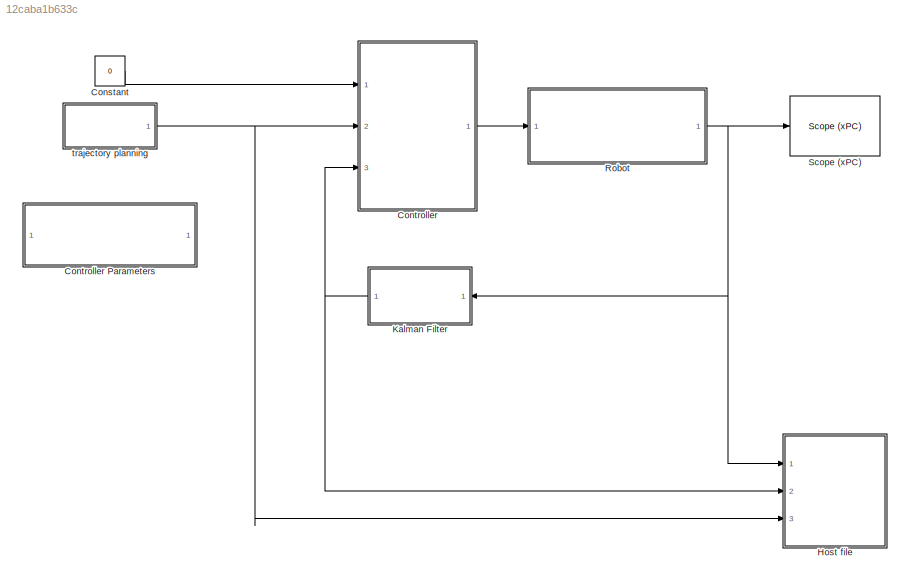
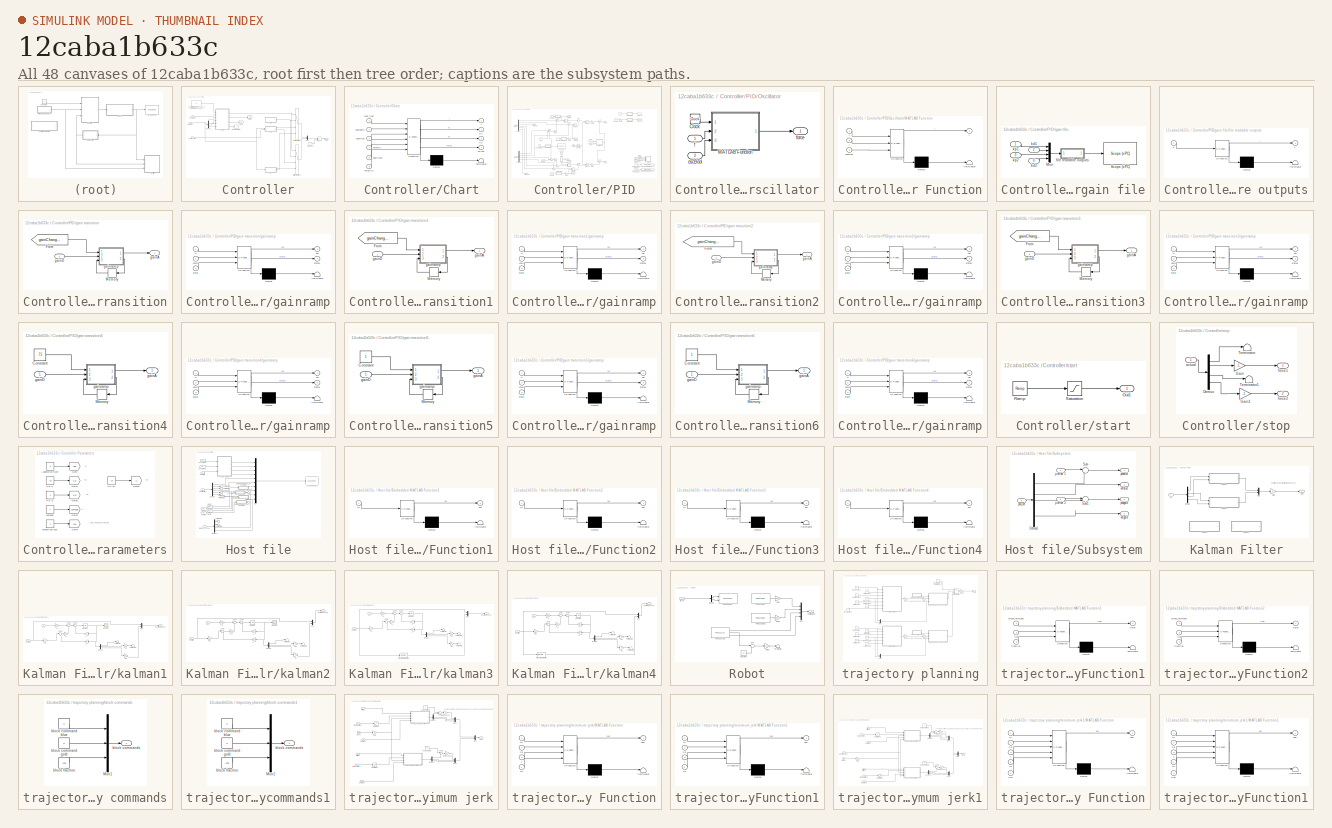
[diagram: thumbnail index - all 48 canvases of the model, root first then tree order]
MODEL slx_12caba1b633c
KIND model
BLOCK [Constant] Constant
  Description = xPCTag(1) = onSwitch;
  Value = 0
BLOCK [SubSystem] Controller
  FunctionWithSeparateData = off
  MaskHideContents = off
  MinAlgLoopOccurrences = off
  Opaque = off
  Ports = [3, 1]
  PropExecContextOutsideSubsystem = off
  RTWSystemCode = Auto
  RequestExecContextInheritance = off
BLOCK [SubSystem] Controller Parameters
  FunctionWithSeparateData = off
  MaskHideContents = off
  MinAlgLoopOccurrences = off
  Opaque = off
  Ports = []
  PropExecContextOutsideSubsystem = off
  RTWSystemCode = Auto
  RequestExecContextInheritance = off
BLOCK [Constant] Controller Parameters/Adaptation Rate
  Description = xPCTag(1)=learning_rate;
  Value = -5
BLOCK [Goto] Controller Parameters/Goto
  GotoTag = Tau
  TagVisibility = global
BLOCK [Goto] Controller Parameters/Goto1
  GotoTag = Kp
  TagVisibility = global
BLOCK [Goto] Controller Parameters/Goto2
  GotoTag = Kd
  TagVisibility = global
BLOCK [Goto] Controller Parameters/Goto3
  GotoTag = Lambda
  TagVisibility = global
BLOCK [Goto] Controller Parameters/Goto4
  GotoTag = tau
  TagVisibility = global
BLOCK [Goto] Controller Parameters/Goto5
  GotoTag = K
  TagVisibility = global
BLOCK [Constant] Controller Parameters/Lambda
BLOCK [Constant] Controller Parameters/PD d
  Value = -1
BLOCK [Constant] Controller Parameters/PD p
  Value = -10
BLOCK [Constant] Controller Parameters/PD p1
  Value = -10
BLOCK [Constant] Controller Parameters/forgetting rate
  Description = xPCTag(1)=forgetting_rate;
  Value = -1
BLOCK [SubSystem] Controller/Chart
  ErrorFcn = Stateflow.Translate.translate
  FunctionWithSeparateData = off
  MaskHideContents = off
  MinAlgLoopOccurrences = off
  Opaque = off
  PermitHierarchicalResolution = ExplicitOnly
  Ports = [6, 4]
  PropExecContextOutsideSubsystem = off
  RTWSystemCode = Auto
  RequestExecContextInheritance = off
  SFBlockType = Chart
  TreatAsAtomicUnit = on
BLOCK [Demux] Controller/Chart/ Demux 
  Outputs = 1
  Ports = [1, 1]
BLOCK [S-Function] Controller/Chart/ SFunction 
  EnableBusSupport = on
  FunctionName = sf_sfun
  PortCounts = [6 5]
  Ports = [6, 5]
  Tag = Stateflow S-Function guitar3 1
BLOCK [Terminator] Controller/Chart/ Terminator 
BLOCK [Outport] Controller/Chart/FStop
  IconDisplay = Port number
  Port = 4
BLOCK [Outport] Controller/Chart/K1
  IconDisplay = Port number
  Port = 2
BLOCK [Outport] Controller/Chart/K2
  IconDisplay = Port number
  Port = 3
BLOCK [Inport] Controller/Chart/cont_type
  IconDisplay = Port number
BLOCK [Outport] Controller/Chart/f
  IconDisplay = Port number
BLOCK [Inport] Controller/Chart/position
  IconDisplay = Port number
  Port = 3
BLOCK [Inport] Controller/Chart/position2
  IconDisplay = Port number
  Port = 5
BLOCK [Inport] Controller/Chart/shutdown
  IconDisplay = Port number
  Port = 2
BLOCK [Inport] Controller/Chart/velocity
  IconDisplay = Port number
  Port = 4
BLOCK [Inport] Controller/Chart/velocity2
  IconDisplay = Port number
  Port = 6
BLOCK [Demux] Controller/Demux
  DisplayOption = bar
  Ports = [1, 4]
BLOCK [Goto] Controller/Goto
  GotoTag = K1
  TagVisibility = global
BLOCK [Goto] Controller/Goto1
  GotoTag = K2
  TagVisibility = global
BLOCK [MultiPortSwitch] Controller/Multiport Switch
  InputSameDT = off
  Ports = [4, 1]
  SaturateOnIntegerOverflow = off
BLOCK [MultiPortSwitch] Controller/Multiport Switch1
  InputSameDT = off
  Ports = [4, 1]
  SaturateOnIntegerOverflow = off
BLOCK [Mux] Controller/Mux
  DisplayOption = bar
  Inputs = 2
  Ports = [2, 1]
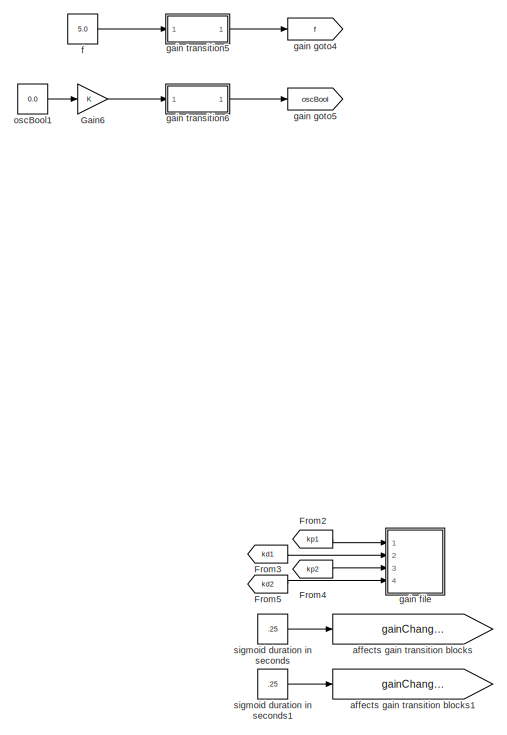
[diagram: Controller/PID - part 1/2, right side, full height]
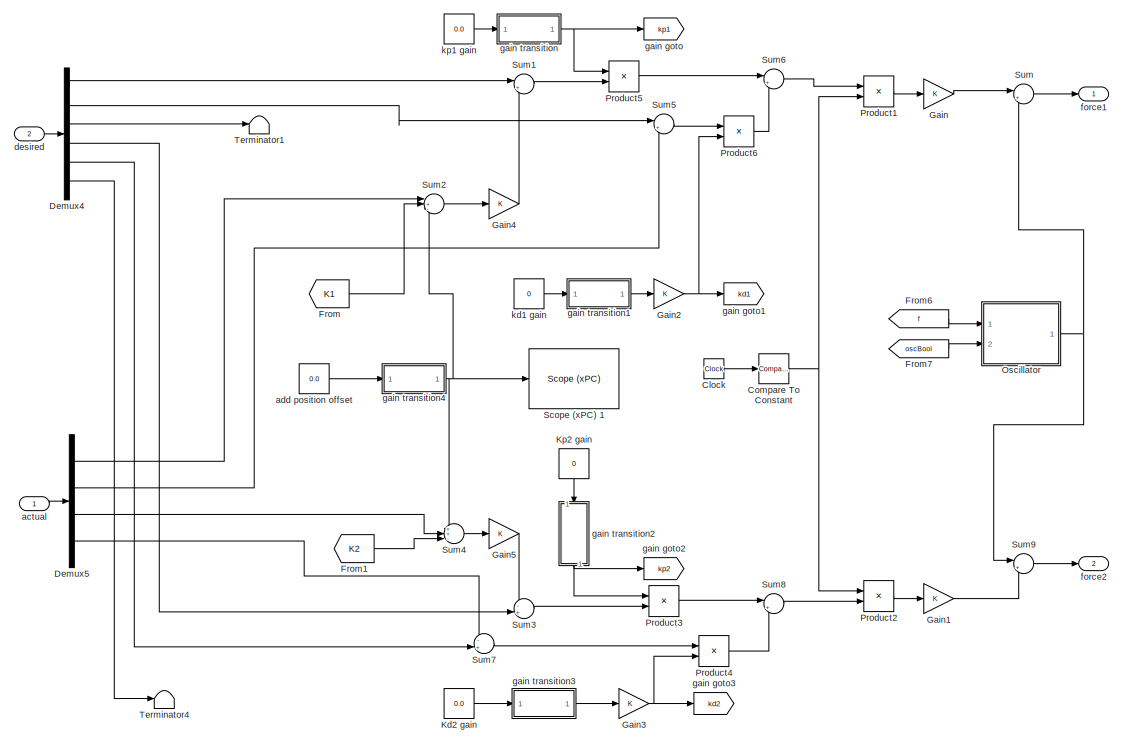
[diagram: Controller/PID - part 2/2, center side, full height]
BLOCK [SubSystem] Controller/PID
  FunctionWithSeparateData = off
  MaskHideContents = off
  MinAlgLoopOccurrences = off
  Opaque = off
  Ports = [2, 2]
  PropExecContextOutsideSubsystem = off
  RTWSystemCode = Auto
  RequestExecContextInheritance = off
BLOCK [Clock] Controller/PID/Clock
BLOCK [Reference] Controller/PID/Compare To Constant  REF=simulink/Logic and Bit
Operations/Compare
To Constant
  OutDataTypeStr = uint8
  Ports = [1, 1]
  SourceBlock = simulink/Logic and Bit\nOperations/Compare\nTo Constant
  SourceType = Compare To Constant
  ZeroCross = on
  const = 5
  relop = >=
BLOCK [Demux] Controller/PID/Demux4
  DisplayOption = bar
  Outputs = 6
  Ports = [1, 6]
BLOCK [Demux] Controller/PID/Demux5
  DisplayOption = bar
  Ports = [1, 4]
BLOCK [From] Controller/PID/From
  GotoTag = K1
  TagVisibility = global
BLOCK [From] Controller/PID/From1
  GotoTag = K2
  TagVisibility = global
BLOCK [From] Controller/PID/From2
  GotoTag = kp1
  TagVisibility = global
BLOCK [From] Controller/PID/From3
  GotoTag = kd1
  TagVisibility = global
BLOCK [From] Controller/PID/From4
  GotoTag = kp2
  TagVisibility = global
BLOCK [From] Controller/PID/From5
  GotoTag = kd2
  TagVisibility = global
BLOCK [From] Controller/PID/From6
  GotoTag = f
  TagVisibility = global
BLOCK [From] Controller/PID/From7
  GotoTag = oscBool
  TagVisibility = global
BLOCK [Gain] Controller/PID/Gain
  OutDataTypeStr = Inherit: Inherit via internal rule
  ParamDataTypeStr = Inherit: Inherit via internal rule
  SaturateOnIntegerOverflow = off
BLOCK [Gain] Controller/PID/Gain1
  OutDataTypeStr = Inherit: Inherit via internal rule
  ParamDataTypeStr = Inherit: Inherit via internal rule
  SaturateOnIntegerOverflow = off
BLOCK [Gain] Controller/PID/Gain2
  OutDataTypeStr = Inherit: Inherit via internal rule
  ParamDataTypeStr = Inherit: Inherit via internal rule
  SaturateOnIntegerOverflow = off
BLOCK [Gain] Controller/PID/Gain3
  OutDataTypeStr = Inherit: Inherit via internal rule
  ParamDataTypeStr = Inherit: Inherit via internal rule
  SaturateOnIntegerOverflow = off
BLOCK [Gain] Controller/PID/Gain4
  OutDataTypeStr = Inherit: Inherit via internal rule
  ParamDataTypeStr = Inherit: Inherit via internal rule
  SaturateOnIntegerOverflow = off
BLOCK [Gain] Controller/PID/Gain5
  OutDataTypeStr = Inherit: Inherit via internal rule
  ParamDataTypeStr = Inherit: Inherit via internal rule
  SaturateOnIntegerOverflow = off
BLOCK [Gain] Controller/PID/Gain6
  OutDataTypeStr = Inherit: Inherit via internal rule
  ParamDataTypeStr = Inherit: Inherit via internal rule
  SaturateOnIntegerOverflow = off
BLOCK [Constant] Controller/PID/Kd2 gain
  Description = xPCTag(1)=Kd2;
  Value = 0.0
BLOCK [Constant] Controller/PID/Kp2 gain
  Description = xPCTag(1)=Kp2;
  Value = 0
BLOCK [SubSystem] Controller/PID/Oscillator
  FunctionWithSeparateData = off
  MaskHideContents = off
  MinAlgLoopOccurrences = off
  Opaque = off
  Ports = [2, 1]
  PropExecContextOutsideSubsystem = off
  RTWSystemCode = Auto
  RequestExecContextInheritance = off
BLOCK [Clock] Controller/PID/Oscillator/Clock
BLOCK [SubSystem] Controller/PID/Oscillator/MATLAB Function
  ErrorFcn = Stateflow.Translate.translate
  FunctionWithSeparateData = off
  MaskHideContents = off
  MinAlgLoopOccurrences = off
  Opaque = off
  PermitHierarchicalResolution = ExplicitOnly
  Ports = [3, 1]
  PropExecContextOutsideSubsystem = off
  RTWSystemCode = Auto
  RequestExecContextInheritance = off
  SFBlockType = MATLAB Function
  TreatAsAtomicUnit = on
BLOCK [Demux] Controller/PID/Oscillator/MATLAB Function/ Demux 
  Outputs = 1
  Ports = [1, 1]
BLOCK [S-Function] Controller/PID/Oscillator/MATLAB Function/ SFunction 
  EnableBusSupport = on
  FunctionName = sf_sfun
  PortCounts = [3 2]
  Ports = [3, 2]
  Tag = Stateflow S-Function guitar3 11
BLOCK [Terminator] Controller/PID/Oscillator/MATLAB Function/ Terminator 
BLOCK [Inport] Controller/PID/Oscillator/MATLAB Function/f
  IconDisplay = Port number
  Port = 2
BLOCK [Inport] Controller/PID/Oscillator/MATLAB Function/oscBool
  IconDisplay = Port number
  Port = 3
BLOCK [Inport] Controller/PID/Oscillator/MATLAB Function/t
  IconDisplay = Port number
BLOCK [Outport] Controller/PID/Oscillator/MATLAB Function/y
  IconDisplay = Port number
BLOCK [Inport] Controller/PID/Oscillator/f
  IconDisplay = Port number
BLOCK [Outport] Controller/PID/Oscillator/force
  IconDisplay = Port number
BLOCK [Inport] Controller/PID/Oscillator/oscBool
  IconDisplay = Port number
  Port = 2
BLOCK [Product] Controller/PID/Product1
  InputSameDT = off
  OutDataTypeStr = Inherit: Inherit via internal rule
  Ports = [2, 1]
  SaturateOnIntegerOverflow = off
BLOCK [Product] Controller/PID/Product2
  InputSameDT = off
  OutDataTypeStr = Inherit: Inherit via internal rule
  Ports = [2, 1]
  SaturateOnIntegerOverflow = off
BLOCK [Product] Controller/PID/Product3
  InputSameDT = off
  OutDataTypeStr = Inherit: Inherit via internal rule
  Ports = [2, 1]
  SaturateOnIntegerOverflow = off
BLOCK [Product] Controller/PID/Product4
  InputSameDT = off
  OutDataTypeStr = Inherit: Inherit via internal rule
  Ports = [2, 1]
  SaturateOnIntegerOverflow = off
BLOCK [Product] Controller/PID/Product5
  InputSameDT = off
  OutDataTypeStr = Inherit: Inherit via internal rule
  Ports = [2, 1]
  SaturateOnIntegerOverflow = off
BLOCK [Product] Controller/PID/Product6
  InputSameDT = off
  OutDataTypeStr = Inherit: Inherit via internal rule
  Ports = [2, 1]
  SaturateOnIntegerOverflow = off
BLOCK [Reference] Controller/PID/Scope (xPC) 1  REF=xpclib/Misc./Scope (xPC) 
  Ports = [1]
  SourceBlock = xpclib/Misc./Scope (xPC)
  SourceType = xpcscopeblock
  autorestart = off
  autostart = on
  dynamicfilemode = off
  filename = data.dat
  formatstr = '%15.6f'
  grid = on
  interleave = 1
  maxwritefilesize = 512*1024^2
  mode = Lazy
  noprepostsamples = 0
  nosamples = 500
  scopeno = 6
  scopetype = Target
  triggerlevel = 0.0
  triggermode = FreeRun
  triggersample = 0
  triggerscope = 1
  triggersignal = 1
  triggerslope = Either
  viewmode = Graphical redraw
  writesize = 512
  ylimits = [0,0]
BLOCK [Sum] Controller/PID/Sum
  IconShape = round
  InputSameDT = off
  Inputs = |++
  OutDataTypeStr = Inherit: Inherit via internal rule
  Ports = [2, 1]
  SaturateOnIntegerOverflow = off
BLOCK [Sum] Controller/PID/Sum1
  IconShape = round
  InputSameDT = off
  Inputs = |+-
  OutDataTypeStr = Inherit: Inherit via internal rule
  Ports = [2, 1]
  SaturateOnIntegerOverflow = off
BLOCK [Sum] Controller/PID/Sum2
  IconShape = round
  InputSameDT = off
  Inputs = |+-+
  OutDataTypeStr = Inherit: Inherit via internal rule
  Ports = [3, 1]
  SaturateOnIntegerOverflow = off
BLOCK [Sum] Controller/PID/Sum3
  IconShape = round
  InputSameDT = off
  Inputs = -+|
  OutDataTypeStr = Inherit: Inherit via internal rule
  Ports = [2, 1]
  SaturateOnIntegerOverflow = off
BLOCK [Sum] Controller/PID/Sum4
  IconShape = round
  InputSameDT = off
  Inputs = ++-|
  OutDataTypeStr = Inherit: Inherit via internal rule
  Ports = [3, 1]
  SaturateOnIntegerOverflow = off
BLOCK [Sum] Controller/PID/Sum5
  IconShape = round
  InputSameDT = off
  Inputs = |+-
  OutDataTypeStr = Inherit: Inherit via internal rule
  Ports = [2, 1]
  SaturateOnIntegerOverflow = off
BLOCK [Sum] Controller/PID/Sum6
  IconShape = round
  InputSameDT = off
  Inputs = |++
  OutDataTypeStr = Inherit: Inherit via internal rule
  Ports = [2, 1]
  SaturateOnIntegerOverflow = off
BLOCK [Sum] Controller/PID/Sum7
  IconShape = round
  InputSameDT = off
  Inputs = -+|
  OutDataTypeStr = Inherit: Inherit via internal rule
  Ports = [2, 1]
  SaturateOnIntegerOverflow = off
BLOCK [Sum] Controller/PID/Sum8
  IconShape = round
  InputSameDT = off
  Inputs = |++
  OutDataTypeStr = Inherit: Inherit via internal rule
  Ports = [2, 1]
  SaturateOnIntegerOverflow = off
BLOCK [Sum] Controller/PID/Sum9
  IconShape = round
  InputSameDT = off
  Inputs = |++
  OutDataTypeStr = Inherit: Inherit via internal rule
  Ports = [2, 1]
  SaturateOnIntegerOverflow = off
BLOCK [Terminator] Controller/PID/Terminator1
BLOCK [Terminator] Controller/PID/Terminator4
BLOCK [Inport] Controller/PID/actual
  IconDisplay = Port number
BLOCK [Constant] Controller/PID/add position offset
  Description = xPCTag(1)=posoffset;
  Value = 0.0
BLOCK [Goto] Controller/PID/affects gain transition blocks
  GotoTag = gainChangeRate
  TagVisibility = global
BLOCK [Goto] Controller/PID/affects gain transition blocks1
  GotoTag = gainChangeRateDamping
  TagVisibility = global
BLOCK [Inport] Controller/PID/desired
  IconDisplay = Port number
  Port = 2
BLOCK [Constant] Controller/PID/f
  Description = xPCTag(1)=f;
  Value = 5.0
BLOCK [Outport] Controller/PID/force1
  IconDisplay = Port number
BLOCK [Outport] Controller/PID/force2
  IconDisplay = Port number
  Port = 2
BLOCK [SubSystem] Controller/PID/gain file
  FunctionWithSeparateData = off
  MaskHideContents = off
  MinAlgLoopOccurrences = off
  Opaque = off
  Ports = [4]
  PropExecContextOutsideSubsystem = off
  RTWSystemCode = Auto
  RequestExecContextInheritance = off
BLOCK [Mux] Controller/PID/gain file/Mux
  DisplayOption = bar
  Ports = [4, 1]
BLOCK [Reference] Controller/PID/gain file/Scope (xPC)   REF=xpclib/Misc./Scope (xPC) 
  Ports = [1]
  SourceBlock = xpclib/Misc./Scope (xPC)
  SourceType = xpcscopeblock
  autorestart = on
  autostart = on
  dynamicfilemode = off
  filename = data.dat
  formatstr = '%15.6f'
  grid = on
  interleave = 1
  maxwritefilesize = 512*1024^2
  mode = Lazy
  noprepostsamples = 0
  nosamples = 10000
  scopeno = 2
  scopetype = File
  triggerlevel = 0.0
  triggermode = FreeRun
  triggersample = 0
  triggerscope = 1
  triggersignal = 1
  triggerslope = Either
  viewmode = Graphical redraw
  writesize = 512
  ylimits = [0,0]
BLOCK [SubSystem] Controller/PID/gain file/file readable outputs
  ErrorFcn = Stateflow.Translate.translate
  FunctionWithSeparateData = off
  MaskHideContents = off
  MinAlgLoopOccurrences = off
  Opaque = off
  PermitHierarchicalResolution = ExplicitOnly
  Ports = [1, 1]
  PropExecContextOutsideSubsystem = off
  RTWSystemCode = Auto
  RequestExecContextInheritance = off
  SFBlockType = MATLAB Function
  TreatAsAtomicUnit = on
BLOCK [Demux] Controller/PID/gain file/file readable outputs/ Demux 
  Outputs = 1
  Ports = [1, 1]
BLOCK [S-Function] Controller/PID/gain file/file readable outputs/ SFunction 
  EnableBusSupport = on
  FunctionName = sf_sfun
  PortCounts = [1 2]
  Ports = [1, 2]
  Tag = Stateflow S-Function guitar3 4
BLOCK [Terminator] Controller/PID/gain file/file readable outputs/ Terminator 
BLOCK [Inport] Controller/PID/gain file/file readable outputs/u
  IconDisplay = Port number
BLOCK [Outport] Controller/PID/gain file/file readable outputs/y
  IconDisplay = Port number
BLOCK [Inport] Controller/PID/gain file/kd1
  IconDisplay = Port number
  Port = 2
BLOCK [Inport] Controller/PID/gain file/kd2
  IconDisplay = Port number
  Port = 4
BLOCK [Inport] Controller/PID/gain file/kp1
  IconDisplay = Port number
BLOCK [Inport] Controller/PID/gain file/kp2
  IconDisplay = Port number
  Port = 3
BLOCK [Goto] Controller/PID/gain goto
  GotoTag = kp1
  TagVisibility = global
BLOCK [Goto] Controller/PID/gain goto1
  GotoTag = kd1
  TagVisibility = global
BLOCK [Goto] Controller/PID/gain goto2
  GotoTag = kp2
  TagVisibility = global
BLOCK [Goto] Controller/PID/gain goto3
  GotoTag = kd2
  TagVisibility = global
BLOCK [Goto] Controller/PID/gain goto4
  GotoTag = f
  TagVisibility = global
BLOCK [Goto] Controller/PID/gain goto5
  GotoTag = oscBool
  TagVisibility = global
BLOCK [SubSystem] Controller/PID/gain transition
  FunctionWithSeparateData = off
  MaskHideContents = off
  MinAlgLoopOccurrences = off
  Opaque = off
  Ports = [1, 1]
  PropExecContextOutsideSubsystem = off
  RTWSystemCode = Auto
  RequestExecContextInheritance = off
BLOCK [From] Controller/PID/gain transition/From
  GotoTag = gainChangeRate
  TagVisibility = global
BLOCK [Memory] Controller/PID/gain transition/Memory
  X0 = zeros(1,4)
BLOCK [Outport] Controller/PID/gain transition/gainA
  IconDisplay = Port number
BLOCK [Inport] Controller/PID/gain transition/gainD
  IconDisplay = Port number
BLOCK [SubSystem] Controller/PID/gain transition/gainramp
  ErrorFcn = Stateflow.Translate.translate
  FunctionWithSeparateData = off
  MaskHideContents = off
  MinAlgLoopOccurrences = off
  Opaque = off
  PermitHierarchicalResolution = ExplicitOnly
  Ports = [3, 2]
  PropExecContextOutsideSubsystem = off
  RTWSystemCode = Auto
  RequestExecContextInheritance = off
  SFBlockType = MATLAB Function
  TreatAsAtomicUnit = on
BLOCK [Demux] Controller/PID/gain transition/gainramp/ Demux 
  Outputs = 1
  Ports = [1, 1]
BLOCK [S-Function] Controller/PID/gain transition/gainramp/ SFunction 
  EnableBusSupport = on
  FunctionName = sf_sfun
  PortCounts = [3 3]
  Ports = [3, 3]
  Tag = Stateflow S-Function guitar3 5
BLOCK [Terminator] Controller/PID/gain transition/gainramp/ Terminator 
BLOCK [Inport] Controller/PID/gain transition/gainramp/state
  IconDisplay = Port number
  Port = 3
BLOCK [Outport] Controller/PID/gain transition/gainramp/state1
  IconDisplay = Port number
  Port = 2
BLOCK [Inport] Controller/PID/gain transition/gainramp/tr
  IconDisplay = Port number
BLOCK [Outport] Controller/PID/gain transition/gainramp/val
  IconDisplay = Port number
BLOCK [Inport] Controller/PID/gain transition/gainramp/valD
  IconDisplay = Port number
  Port = 2
BLOCK [SubSystem] Controller/PID/gain transition1
  FunctionWithSeparateData = off
  MaskHideContents = off
  MinAlgLoopOccurrences = off
  Opaque = off
  Ports = [1, 1]
  PropExecContextOutsideSubsystem = off
  RTWSystemCode = Auto
  RequestExecContextInheritance = off
BLOCK [From] Controller/PID/gain transition1/From
  GotoTag = gainChangeRate
  TagVisibility = global
BLOCK [Memory] Controller/PID/gain transition1/Memory
  X0 = zeros(1,4)
BLOCK [Outport] Controller/PID/gain transition1/gainA
  IconDisplay = Port number
BLOCK [Inport] Controller/PID/gain transition1/gainD
  IconDisplay = Port number
BLOCK [SubSystem] Controller/PID/gain transition1/gainramp
  ErrorFcn = Stateflow.Translate.translate
  FunctionWithSeparateData = off
  MaskHideContents = off
  MinAlgLoopOccurrences = off
  Opaque = off
  PermitHierarchicalResolution = ExplicitOnly
  Ports = [3, 2]
  PropExecContextOutsideSubsystem = off
  RTWSystemCode = Auto
  RequestExecContextInheritance = off
  SFBlockType = MATLAB Function
  TreatAsAtomicUnit = on
BLOCK [Demux] Controller/PID/gain transition1/gainramp/ Demux 
  Outputs = 1
  Ports = [1, 1]
BLOCK [S-Function] Controller/PID/gain transition1/gainramp/ SFunction 
  EnableBusSupport = on
  FunctionName = sf_sfun
  PortCounts = [3 3]
  Ports = [3, 3]
  Tag = Stateflow S-Function guitar3 7
BLOCK [Terminator] Controller/PID/gain transition1/gainramp/ Terminator 
BLOCK [Inport] Controller/PID/gain transition1/gainramp/state
  IconDisplay = Port number
  Port = 3
BLOCK [Outport] Controller/PID/gain transition1/gainramp/state1
  IconDisplay = Port number
  Port = 2
BLOCK [Inport] Controller/PID/gain transition1/gainramp/tr
  IconDisplay = Port number
BLOCK [Outport] Controller/PID/gain transition1/gainramp/val
  IconDisplay = Port number
BLOCK [Inport] Controller/PID/gain transition1/gainramp/valD
  IconDisplay = Port number
  Port = 2
BLOCK [SubSystem] Controller/PID/gain transition2
  FunctionWithSeparateData = off
  MaskHideContents = off
  MinAlgLoopOccurrences = off
  Opaque = off
  Ports = [1, 1]
  PropExecContextOutsideSubsystem = off
  RTWSystemCode = Auto
  RequestExecContextInheritance = off
BLOCK [From] Controller/PID/gain transition2/From
  GotoTag = gainChangeRateDamping
  TagVisibility = global
BLOCK [Memory] Controller/PID/gain transition2/Memory
  X0 = zeros(1,4)
BLOCK [Outport] Controller/PID/gain transition2/gainA
  IconDisplay = Port number
BLOCK [Inport] Controller/PID/gain transition2/gainD
  IconDisplay = Port number
BLOCK [SubSystem] Controller/PID/gain transition2/gainramp
  ErrorFcn = Stateflow.Translate.translate
  FunctionWithSeparateData = off
  MaskHideContents = off
  MinAlgLoopOccurrences = off
  Opaque = off
  PermitHierarchicalResolution = ExplicitOnly
  Ports = [3, 2]
  PropExecContextOutsideSubsystem = off
  RTWSystemCode = Auto
  RequestExecContextInheritance = off
  SFBlockType = MATLAB Function
  TreatAsAtomicUnit = on
BLOCK [Demux] Controller/PID/gain transition2/gainramp/ Demux 
  Outputs = 1
  Ports = [1, 1]
BLOCK [S-Function] Controller/PID/gain transition2/gainramp/ SFunction 
  EnableBusSupport = on
  FunctionName = sf_sfun
  PortCounts = [3 3]
  Ports = [3, 3]
  Tag = Stateflow S-Function guitar3 8
BLOCK [Terminator] Controller/PID/gain transition2/gainramp/ Terminator 
BLOCK [Inport] Controller/PID/gain transition2/gainramp/state
  IconDisplay = Port number
  Port = 3
BLOCK [Outport] Controller/PID/gain transition2/gainramp/state1
  IconDisplay = Port number
  Port = 2
BLOCK [Inport] Controller/PID/gain transition2/gainramp/tr
  IconDisplay = Port number
BLOCK [Outport] Controller/PID/gain transition2/gainramp/val
  IconDisplay = Port number
BLOCK [Inport] Controller/PID/gain transition2/gainramp/valD
  IconDisplay = Port number
  Port = 2
BLOCK [SubSystem] Controller/PID/gain transition3
  FunctionWithSeparateData = off
  MaskHideContents = off
  MinAlgLoopOccurrences = off
  Opaque = off
  Ports = [1, 1]
  PropExecContextOutsideSubsystem = off
  RTWSystemCode = Auto
  RequestExecContextInheritance = off
BLOCK [From] Controller/PID/gain transition3/From
  GotoTag = gainChangeRate
  TagVisibility = global
BLOCK [Memory] Controller/PID/gain transition3/Memory
  X0 = zeros(1,4)
BLOCK [Outport] Controller/PID/gain transition3/gainA
  IconDisplay = Port number
BLOCK [Inport] Controller/PID/gain transition3/gainD
  IconDisplay = Port number
BLOCK [SubSystem] Controller/PID/gain transition3/gainramp
  ErrorFcn = Stateflow.Translate.translate
  FunctionWithSeparateData = off
  MaskHideContents = off
  MinAlgLoopOccurrences = off
  Opaque = off
  PermitHierarchicalResolution = ExplicitOnly
  Ports = [3, 2]
  PropExecContextOutsideSubsystem = off
  RTWSystemCode = Auto
  RequestExecContextInheritance = off
  SFBlockType = MATLAB Function
  TreatAsAtomicUnit = on
BLOCK [Demux] Controller/PID/gain transition3/gainramp/ Demux 
  Outputs = 1
  Ports = [1, 1]
BLOCK [S-Function] Controller/PID/gain transition3/gainramp/ SFunction 
  EnableBusSupport = on
  FunctionName = sf_sfun
  PortCounts = [3 3]
  Ports = [3, 3]
  Tag = Stateflow S-Function guitar3 9
BLOCK [Terminator] Controller/PID/gain transition3/gainramp/ Terminator 
BLOCK [Inport] Controller/PID/gain transition3/gainramp/state
  IconDisplay = Port number
  Port = 3
BLOCK [Outport] Controller/PID/gain transition3/gainramp/state1
  IconDisplay = Port number
  Port = 2
BLOCK [Inport] Controller/PID/gain transition3/gainramp/tr
  IconDisplay = Port number
BLOCK [Outport] Controller/PID/gain transition3/gainramp/val
  IconDisplay = Port number
BLOCK [Inport] Controller/PID/gain transition3/gainramp/valD
  IconDisplay = Port number
  Port = 2
BLOCK [SubSystem] Controller/PID/gain transition4
  FunctionWithSeparateData = off
  MaskHideContents = off
  MinAlgLoopOccurrences = off
  Opaque = off
  Ports = [1, 1]
  PropExecContextOutsideSubsystem = off
  RTWSystemCode = Auto
  RequestExecContextInheritance = off
BLOCK [Constant] Controller/PID/gain transition4/Constant
  Value = .75
BLOCK [Memory] Controller/PID/gain transition4/Memory
  X0 = zeros(1,4)
BLOCK [Outport] Controller/PID/gain transition4/gainA
  IconDisplay = Port number
BLOCK [Inport] Controller/PID/gain transition4/gainD
  IconDisplay = Port number
BLOCK [SubSystem] Controller/PID/gain transition4/gainramp
  ErrorFcn = Stateflow.Translate.translate
  FunctionWithSeparateData = off
  MaskHideContents = off
  MinAlgLoopOccurrences = off
  Opaque = off
  PermitHierarchicalResolution = ExplicitOnly
  Ports = [3, 2]
  PropExecContextOutsideSubsystem = off
  RTWSystemCode = Auto
  RequestExecContextInheritance = off
  SFBlockType = MATLAB Function
  TreatAsAtomicUnit = on
BLOCK [Demux] Controller/PID/gain transition4/gainramp/ Demux 
  Outputs = 1
  Ports = [1, 1]
BLOCK [S-Function] Controller/PID/gain transition4/gainramp/ SFunction 
  EnableBusSupport = on
  FunctionName = sf_sfun
  PortCounts = [3 3]
  Ports = [3, 3]
  Tag = Stateflow S-Function guitar3 10
BLOCK [Terminator] Controller/PID/gain transition4/gainramp/ Terminator 
BLOCK [Inport] Controller/PID/gain transition4/gainramp/state
  IconDisplay = Port number
  Port = 3
BLOCK [Outport] Controller/PID/gain transition4/gainramp/state1
  IconDisplay = Port number
  Port = 2
BLOCK [Inport] Controller/PID/gain transition4/gainramp/tr
  IconDisplay = Port number
BLOCK [Outport] Controller/PID/gain transition4/gainramp/val
  IconDisplay = Port number
BLOCK [Inport] Controller/PID/gain transition4/gainramp/valD
  IconDisplay = Port number
  Port = 2
BLOCK [SubSystem] Controller/PID/gain transition5
  FunctionWithSeparateData = off
  MaskHideContents = off
  MinAlgLoopOccurrences = off
  Opaque = off
  Ports = [1, 1]
  PropExecContextOutsideSubsystem = off
  RTWSystemCode = Auto
  RequestExecContextInheritance = off
BLOCK [Constant] Controller/PID/gain transition5/Constant
BLOCK [Memory] Controller/PID/gain transition5/Memory
  X0 = zeros(1,4)
BLOCK [Outport] Controller/PID/gain transition5/gainA
  IconDisplay = Port number
BLOCK [Inport] Controller/PID/gain transition5/gainD
  IconDisplay = Port number
BLOCK [SubSystem] Controller/PID/gain transition5/gainramp
  ErrorFcn = Stateflow.Translate.translate
  FunctionWithSeparateData = off
  MaskHideContents = off
  MinAlgLoopOccurrences = off
  Opaque = off
  PermitHierarchicalResolution = ExplicitOnly
  Ports = [3, 2]
  PropExecContextOutsideSubsystem = off
  RTWSystemCode = Auto
  RequestExecContextInheritance = off
  SFBlockType = MATLAB Function
  TreatAsAtomicUnit = on
BLOCK [Demux] Controller/PID/gain transition5/gainramp/ Demux 
  Outputs = 1
  Ports = [1, 1]
BLOCK [S-Function] Controller/PID/gain transition5/gainramp/ SFunction 
  EnableBusSupport = on
  FunctionName = sf_sfun
  PortCounts = [3 3]
  Ports = [3, 3]
  Tag = Stateflow S-Function guitar3 17
BLOCK [Terminator] Controller/PID/gain transition5/gainramp/ Terminator 
BLOCK [Inport] Controller/PID/gain transition5/gainramp/state
  IconDisplay = Port number
  Port = 3
BLOCK [Outport] Controller/PID/gain transition5/gainramp/state1
  IconDisplay = Port number
  Port = 2
BLOCK [Inport] Controller/PID/gain transition5/gainramp/tr
  IconDisplay = Port number
BLOCK [Outport] Controller/PID/gain transition5/gainramp/val
  IconDisplay = Port number
BLOCK [Inport] Controller/PID/gain transition5/gainramp/valD
  IconDisplay = Port number
  Port = 2
BLOCK [SubSystem] Controller/PID/gain transition6
  FunctionWithSeparateData = off
  MaskHideContents = off
  MinAlgLoopOccurrences = off
  Opaque = off
  Ports = [1, 1]
  PropExecContextOutsideSubsystem = off
  RTWSystemCode = Auto
  RequestExecContextInheritance = off
BLOCK [Constant] Controller/PID/gain transition6/Constant
BLOCK [Memory] Controller/PID/gain transition6/Memory
  X0 = zeros(1,4)
BLOCK [Outport] Controller/PID/gain transition6/gainA
  IconDisplay = Port number
BLOCK [Inport] Controller/PID/gain transition6/gainD
  IconDisplay = Port number
BLOCK [SubSystem] Controller/PID/gain transition6/gainramp
  ErrorFcn = Stateflow.Translate.translate
  FunctionWithSeparateData = off
  MaskHideContents = off
  MinAlgLoopOccurrences = off
  Opaque = off
  PermitHierarchicalResolution = ExplicitOnly
  Ports = [3, 2]
  PropExecContextOutsideSubsystem = off
  RTWSystemCode = Auto
  RequestExecContextInheritance = off
  SFBlockType = MATLAB Function
  TreatAsAtomicUnit = on
BLOCK [Demux] Controller/PID/gain transition6/gainramp/ Demux 
  Outputs = 1
  Ports = [1, 1]
BLOCK [S-Function] Controller/PID/gain transition6/gainramp/ SFunction 
  EnableBusSupport = on
  FunctionName = sf_sfun
  PortCounts = [3 3]
  Ports = [3, 3]
  Tag = Stateflow S-Function guitar3 18
BLOCK [Terminator] Controller/PID/gain transition6/gainramp/ Terminator 
BLOCK [Inport] Controller/PID/gain transition6/gainramp/state
  IconDisplay = Port number
  Port = 3
BLOCK [Outport] Controller/PID/gain transition6/gainramp/state1
  IconDisplay = Port number
  Port = 2
BLOCK [Inport] Controller/PID/gain transition6/gainramp/tr
  IconDisplay = Port number
BLOCK [Outport] Controller/PID/gain transition6/gainramp/val
  IconDisplay = Port number
BLOCK [Inport] Controller/PID/gain transition6/gainramp/valD
  IconDisplay = Port number
  Port = 2
BLOCK [Constant] Controller/PID/kd1 gain
  Description = xPCTag(1)=Kd1;
  Value = 0
BLOCK [Constant] Controller/PID/kp1 gain
  Description = xPCTag(1)=Kp1;
  Value = 0.0
BLOCK [Constant] Controller/PID/oscBool1
  Description = xPCTag(1)=oscBool;
  Value = 0.0
BLOCK [Constant] Controller/PID/sigmoid duration in seconds
  Description = xPCTag(1) = gcRate;
  Value = .25
BLOCK [Constant] Controller/PID/sigmoid duration in seconds1
  Description = xPCTag(1) = gcRateDamping;
  Value = .25
BLOCK [Product] Controller/Product
  InputSameDT = off
  OutDataTypeStr = Inherit: Inherit via internal rule
  Ports = [2, 1]
  SaturateOnIntegerOverflow = off
BLOCK [Stop] Controller/Stop Simulation
BLOCK [Constant] Controller/controller type: PID=1 AAN = 2 Generalized AAN =3
BLOCK [Inport] Controller/desired_traj
  IconDisplay = Port number
  Port = 2
BLOCK [Outport] Controller/force
  IconDisplay = Port number
BLOCK [Inport] Controller/pos//vel
  IconDisplay = Port number
  Port = 3
BLOCK [Inport] Controller/shutdown
  IconDisplay = Port number
BLOCK [SubSystem] Controller/start
  FunctionWithSeparateData = off
  MaskHideContents = off
  MinAlgLoopOccurrences = off
  Opaque = off
  Ports = [0, 1]
  PropExecContextOutsideSubsystem = off
  RTWSystemCode = Auto
  RequestExecContextInheritance = off
BLOCK [Outport] Controller/start/Out1
  IconDisplay = Port number
BLOCK [Reference] Controller/start/Ramp  REF=simulink/Sources/Ramp
  Ports = [0, 1]
  SourceBlock = simulink/Sources/Ramp
  SourceType = Ramp
  VectorParams1D = on
  X0 = 0
  slope = -.8
  start = 0
BLOCK [Saturate] Controller/start/Saturation
  InputPortMap = u0
  LowerLimit = -2.5
  Ports = [1, 1]
  UpperLimit = 2.5
BLOCK [SubSystem] Controller/stop
  FunctionWithSeparateData = off
  MaskHideContents = off
  MinAlgLoopOccurrences = off
  Opaque = off
  Ports = [1, 2]
  PropExecContextOutsideSubsystem = off
  RTWSystemCode = Auto
  RequestExecContextInheritance = off
BLOCK [Constant] Controller/stop forces
  Description = xPCTag(1) = stopForces;
BLOCK [Demux] Controller/stop/Demux
  DisplayOption = bar
  Ports = [1, 4]
BLOCK [Gain] Controller/stop/Gain
  Gain = -1
  OutDataTypeStr = Inherit: Inherit via internal rule
  ParamDataTypeStr = Inherit: Inherit via internal rule
  SaturateOnIntegerOverflow = off
BLOCK [Gain] Controller/stop/Gain1
  Gain = -1
  OutDataTypeStr = Inherit: Inherit via internal rule
  ParamDataTypeStr = Inherit: Inherit via internal rule
  SaturateOnIntegerOverflow = off
BLOCK [Terminator] Controller/stop/Terminator
BLOCK [Terminator] Controller/stop/Terminator1
BLOCK [Inport] Controller/stop/actual
  IconDisplay = Port number
BLOCK [Outport] Controller/stop/force1
  IconDisplay = Port number
BLOCK [Outport] Controller/stop/force2
  IconDisplay = Port number
  Port = 2
BLOCK [SubSystem] Host file
  FunctionWithSeparateData = off
  MaskHideContents = off
  MinAlgLoopOccurrences = off
  Opaque = off
  Ports = [3]
  PropExecContextOutsideSubsystem = off
  RTWSystemCode = Auto
  RequestExecContextInheritance = off
BLOCK [Demux] Host file/Demux
  DisplayOption = bar
  Outputs = 6
  Ports = [1, 6]
BLOCK [Demux] Host file/Demux1
  DisplayOption = bar
  Ports = [1, 4]
BLOCK [SubSystem] Host file/Embedded MATLAB Function1
  ErrorFcn = Stateflow.Translate.translate
  FunctionWithSeparateData = off
  MaskHideContents = off
  MinAlgLoopOccurrences = off
  Opaque = off
  PermitHierarchicalResolution = ExplicitOnly
  Ports = [1, 1]
  PropExecContextOutsideSubsystem = off
  RTWSystemCode = Auto
  RequestExecContextInheritance = off
  SFBlockType = MATLAB Function
  TreatAsAtomicUnit = on
BLOCK [Demux] Host file/Embedded MATLAB Function1/ Demux 
  Outputs = 1
  Ports = [1, 1]
BLOCK [S-Function] Host file/Embedded MATLAB Function1/ SFunction 
  EnableBusSupport = on
  FunctionName = sf_sfun
  PortCounts = [1 2]
  Ports = [1, 2]
  Tag = Stateflow S-Function guitar3 12
BLOCK [Terminator] Host file/Embedded MATLAB Function1/ Terminator 
BLOCK [Inport] Host file/Embedded MATLAB Function1/in
  IconDisplay = Port number
BLOCK [Outport] Host file/Embedded MATLAB Function1/out
  IconDisplay = Port number
BLOCK [SubSystem] Host file/Embedded MATLAB Function2
  ErrorFcn = Stateflow.Translate.translate
  FunctionWithSeparateData = off
  MaskHideContents = off
  MinAlgLoopOccurrences = off
  Opaque = off
  PermitHierarchicalResolution = ExplicitOnly
  Ports = [1, 1]
  PropExecContextOutsideSubsystem = off
  RTWSystemCode = Auto
  RequestExecContextInheritance = off
  SFBlockType = MATLAB Function
  TreatAsAtomicUnit = on
BLOCK [Demux] Host file/Embedded MATLAB Function2/ Demux 
  Outputs = 1
  Ports = [1, 1]
BLOCK [S-Function] Host file/Embedded MATLAB Function2/ SFunction 
  EnableBusSupport = on
  FunctionName = sf_sfun
  PortCounts = [1 2]
  Ports = [1, 2]
  Tag = Stateflow S-Function guitar3 13
BLOCK [Terminator] Host file/Embedded MATLAB Function2/ Terminator 
BLOCK [Inport] Host file/Embedded MATLAB Function2/in
  IconDisplay = Port number
BLOCK [Outport] Host file/Embedded MATLAB Function2/out
  IconDisplay = Port number
BLOCK [SubSystem] Host file/Embedded MATLAB Function3
  ErrorFcn = Stateflow.Translate.translate
  FunctionWithSeparateData = off
  MaskHideContents = off
  MinAlgLoopOccurrences = off
  Opaque = off
  PermitHierarchicalResolution = ExplicitOnly
  Ports = [1, 1]
  PropExecContextOutsideSubsystem = off
  RTWSystemCode = Auto
  RequestExecContextInheritance = off
  SFBlockType = MATLAB Function
  TreatAsAtomicUnit = on
BLOCK [Demux] Host file/Embedded MATLAB Function3/ Demux 
  Outputs = 1
  Ports = [1, 1]
BLOCK [S-Function] Host file/Embedded MATLAB Function3/ SFunction 
  EnableBusSupport = on
  FunctionName = sf_sfun
  PortCounts = [1 2]
  Ports = [1, 2]
  Tag = Stateflow S-Function guitar3 15
BLOCK [Terminator] Host file/Embedded MATLAB Function3/ Terminator 
BLOCK [Inport] Host file/Embedded MATLAB Function3/in
  IconDisplay = Port number
BLOCK [Outport] Host file/Embedded MATLAB Function3/out
  IconDisplay = Port number
BLOCK [SubSystem] Host file/Embedded MATLAB Function4
  ErrorFcn = Stateflow.Translate.translate
  FunctionWithSeparateData = off
  MaskHideContents = off
  MinAlgLoopOccurrences = off
  Opaque = off
  PermitHierarchicalResolution = ExplicitOnly
  Ports = [1, 1]
  PropExecContextOutsideSubsystem = off
  RTWSystemCode = Auto
  RequestExecContextInheritance = off
  SFBlockType = MATLAB Function
  TreatAsAtomicUnit = on
BLOCK [Demux] Host file/Embedded MATLAB Function4/ Demux 
  Outputs = 1
  Ports = [1, 1]
BLOCK [S-Function] Host file/Embedded MATLAB Function4/ SFunction 
  EnableBusSupport = on
  FunctionName = sf_sfun
  PortCounts = [1 2]
  Ports = [1, 2]
  Tag = Stateflow S-Function guitar3 14
BLOCK [Terminator] Host file/Embedded MATLAB Function4/ Terminator 
BLOCK [Inport] Host file/Embedded MATLAB Function4/in
  IconDisplay = Port number
BLOCK [Outport] Host file/Embedded MATLAB Function4/out
  IconDisplay = Port number
BLOCK [From] Host file/From2
  GotoTag = kp1
  TagVisibility = global
BLOCK [From] Host file/From3
  GotoTag = kd1
  TagVisibility = global
BLOCK [From] Host file/From4
  GotoTag = kp2
  TagVisibility = global
BLOCK [From] Host file/From5
  GotoTag = kd2
  TagVisibility = global
BLOCK [Mux] Host file/Mux
  DisplayOption = bar
  Inputs = 10
  Ports = [10, 1]
BLOCK [Reference] Host file/Scope (xPC) 1  REF=xpclib/Misc./Scope (xPC) 
  Ports = [1]
  SourceBlock = xpclib/Misc./Scope (xPC)
  SourceType = xpcscopeblock
  autorestart = off
  autostart = on
  dynamicfilemode = off
  filename = data.dat
  formatstr = '%15.6f'
  grid = on
  interleave = 1
  maxwritefilesize = 512*1024^2
  mode = Lazy
  noprepostsamples = 0
  nosamples = 500
  scopeno = 3
  scopetype = Host
  triggerlevel = 0.0
  triggermode = FreeRun
  triggersample = 0
  triggerscope = 1
  triggersignal = 1
  triggerslope = Either
  viewmode = Graphical redraw
  writesize = 512
  ylimits = [0,0]
BLOCK [SubSystem] Host file/Subsystem
  FunctionWithSeparateData = off
  MaskHideContents = off
  MinAlgLoopOccurrences = off
  Opaque = off
  Ports = [3, 4]
  PropExecContextOutsideSubsystem = off
  RTWSystemCode = Auto
  RequestExecContextInheritance = off
BLOCK [Demux] Host file/Subsystem/Demux1
  DisplayOption = bar
  Ports = [1, 4]
BLOCK [Sum] Host file/Subsystem/Sum
  IconShape = round
  InputSameDT = off
  Inputs = |-+
  OutDataTypeStr = Inherit: Inherit via internal rule
  Ports = [2, 1]
  SaturateOnIntegerOverflow = off
BLOCK [Sum] Host file/Subsystem/Sum1
  IconShape = round
  InputSameDT = off
  Inputs = |-+
  OutDataTypeStr = Inherit: Inherit via internal rule
  Ports = [2, 1]
  SaturateOnIntegerOverflow = off
BLOCK [Inport] Host file/Subsystem/p offset 1
  IconDisplay = Port number
BLOCK [Inport] Host file/Subsystem/p offset 2
  IconDisplay = Port number
  Port = 2
BLOCK [Inport] Host file/Subsystem/pos_vel
  IconDisplay = Port number
  Port = 3
BLOCK [Outport] Host file/Subsystem/posblue
  IconDisplay = Port number
BLOCK [Outport] Host file/Subsystem/posgold
  IconDisplay = Port number
  Port = 3
BLOCK [Outport] Host file/Subsystem/velblue
  IconDisplay = Port number
  Port = 2
BLOCK [Outport] Host file/Subsystem/velgold
  IconDisplay = Port number
  Port = 4
BLOCK [Terminator] Host file/Terminator
BLOCK [Terminator] Host file/Terminator1
BLOCK [Terminator] Host file/Terminator2
BLOCK [Terminator] Host file/Terminator3
BLOCK [Terminator] Host file/Terminator4
BLOCK [Terminator] Host file/Terminator5
BLOCK [Terminator] Host file/Terminator6
BLOCK [Terminator] Host file/Terminator7
BLOCK [Inport] Host file/actual traj
  IconDisplay = Port number
  Port = 2
BLOCK [Inport] Host file/desired traj
  IconDisplay = Port number
  Port = 3
BLOCK [From] Host file/pos1 offset
  GotoTag = K1
  TagVisibility = global
BLOCK [From] Host file/pos2 offset
  GotoTag = K2
  TagVisibility = global
BLOCK [Inport] Host file/raw pos_accel
  IconDisplay = Port number
BLOCK [SubSystem] Kalman Filter
  FunctionWithSeparateData = off
  MaskHideContents = off
  MinAlgLoopOccurrences = off
  Opaque = off
  Ports = [1, 1]
  PropExecContextOutsideSubsystem = off
  RTWSystemCode = Auto
  RequestExecContextInheritance = off
BLOCK [Demux] Kalman Filter/Demux
  DisplayOption = bar
  Ports = [1, 4]
BLOCK [Gain] Kalman Filter/Gain
  OutDataTypeStr = Inherit: Inherit via internal rule
  ParamDataTypeStr = Inherit: Inherit via internal rule
  SaturateOnIntegerOverflow = off
BLOCK [Inport] Kalman Filter/In1
  IconDisplay = Port number
BLOCK [Mux] Kalman Filter/Mux
  DisplayOption = bar
  Inputs = 2
  Ports = [2, 1]
BLOCK [Outport] Kalman Filter/Out1
  IconDisplay = Port number
BLOCK [SubSystem] Kalman Filter/kalman1
  FunctionWithSeparateData = off
  MaskHideContents = off
  MinAlgLoopOccurrences = off
  Opaque = off
  Ports = [2, 1]
  PropExecContextOutsideSubsystem = off
  RTWSystemCode = Auto
  RequestExecContextInheritance = off
BLOCK [Gain] Kalman Filter/kalman1/A
  Gain = [0 0 0;0 0 1;-70 0 0]
  Multiplication = Matrix(K*u)
  OutDataTypeStr = Inherit: Inherit via internal rule
  ParamDataTypeStr = Inherit: Inherit via internal rule
  SaturateOnIntegerOverflow = off
BLOCK [Gain] Kalman Filter/kalman1/B
  Gain = [0;0;70]
  Multiplication = Matrix(K*u)
  OutDataTypeStr = Inherit: Inherit via internal rule
  ParamDataTypeStr = Inherit: Inherit via internal rule
  SaturateOnIntegerOverflow = off
BLOCK [Gain] Kalman Filter/kalman1/B1
  Gain = -1
  Multiplication = Matrix(K*u)
  OutDataTypeStr = Inherit: Inherit via internal rule
  ParamDataTypeStr = Inherit: Inherit via internal rule
  SaturateOnIntegerOverflow = off
BLOCK [Gain] Kalman Filter/kalman1/B2
  Multiplication = Matrix(K*u)
  OutDataTypeStr = Inherit: Inherit via internal rule
  ParamDataTypeStr = Inherit: Inherit via internal rule
  SaturateOnIntegerOverflow = off
BLOCK [Gain] Kalman Filter/kalman1/B3
  Gain = -1
  Multiplication = Matrix(K*u)
  OutDataTypeStr = Inherit: Inherit via internal rule
  ParamDataTypeStr = Inherit: Inherit via internal rule
  SaturateOnIntegerOverflow = off
BLOCK [Gain] Kalman Filter/kalman1/C
  Gain = [0 1 0]
  Multiplication = Matrix(K*u)
  OutDataTypeStr = Inherit: Inherit via internal rule
  ParamDataTypeStr = Inherit: Inherit via internal rule
  SaturateOnIntegerOverflow = off
BLOCK [Demux] Kalman Filter/kalman1/Demux
  DisplayOption = bar
  Outputs = 3
  Ports = [1, 3]
BLOCK [Integrator] Kalman Filter/kalman1/Integrator
  InitialCondition = [1.5;0;0]
  Ports = [1, 1]
BLOCK [Gain] Kalman Filter/kalman1/K
  Gain = [-316;101;5050]
  Multiplication = Matrix(K*u)
  OutDataTypeStr = Inherit: Inherit via internal rule
  ParamDataTypeStr = Inherit: Inherit via internal rule
  SaturateOnIntegerOverflow = off
BLOCK [Mux] Kalman Filter/kalman1/Mux
  DisplayOption = bar
  Inputs = 2
  Ports = [2, 1]
BLOCK [Scope] Kalman Filter/kalman1/Scope1
  DataFormat = StructureWithTime
  Floating = off
  LimitDataPoints = off
  NumInputPorts = 1
  Ports = [1]
  SampleTime = 0
  ShowLegends = off
BLOCK [Sum] Kalman Filter/kalman1/Sum2
  IconShape = round
  InputSameDT = off
  Inputs = |+-
  OutDataTypeStr = Inherit: Inherit via internal rule
  Ports = [2, 1]
  SaturateOnIntegerOverflow = off
BLOCK [Sum] Kalman Filter/kalman1/Sum3
  IconShape = round
  InputSameDT = off
  Inputs = |++
  OutDataTypeStr = Inherit: Inherit via internal rule
  Ports = [2, 1]
  SaturateOnIntegerOverflow = off
BLOCK [Sum] Kalman Filter/kalman1/Sum4
  IconShape = round
  InputSameDT = off
  Inputs = |++
  OutDataTypeStr = Inherit: Inherit via internal rule
  Ports = [2, 1]
  SaturateOnIntegerOverflow = off
BLOCK [Terminator] Kalman Filter/kalman1/Terminator
BLOCK [Terminator] Kalman Filter/kalman1/Terminator1
BLOCK [Inport] Kalman Filter/kalman1/acc
  IconDisplay = Port number
  Port = 2
BLOCK [Inport] Kalman Filter/kalman1/position
  IconDisplay = Port number
BLOCK [Outport] Kalman Filter/kalman1/position//est_vel
  IconDisplay = Port number
BLOCK [SubSystem] Kalman Filter/kalman2
  FunctionWithSeparateData = off
  MaskHideContents = off
  MinAlgLoopOccurrences = off
  Opaque = off
  Ports = [2, 1]
  PropExecContextOutsideSubsystem = off
  RTWSystemCode = Auto
  RequestExecContextInheritance = off
BLOCK [Gain] Kalman Filter/kalman2/A
  Gain = [0 0 0;0 0 1;-65 0 0]
  Multiplication = Matrix(K*u)
  OutDataTypeStr = Inherit: Inherit via internal rule
  ParamDataTypeStr = Inherit: Inherit via internal rule
  SaturateOnIntegerOverflow = off
BLOCK [Gain] Kalman Filter/kalman2/B
  Gain = [0;0;65]
  Multiplication = Matrix(K*u)
  OutDataTypeStr = Inherit: Inherit via internal rule
  ParamDataTypeStr = Inherit: Inherit via internal rule
  SaturateOnIntegerOverflow = off
BLOCK [Gain] Kalman Filter/kalman2/B1
  Gain = -1
  Multiplication = Matrix(K*u)
  OutDataTypeStr = Inherit: Inherit via internal rule
  ParamDataTypeStr = Inherit: Inherit via internal rule
  SaturateOnIntegerOverflow = off
BLOCK [Gain] Kalman Filter/kalman2/B2
  Multiplication = Matrix(K*u)
  OutDataTypeStr = Inherit: Inherit via internal rule
  ParamDataTypeStr = Inherit: Inherit via internal rule
  SaturateOnIntegerOverflow = off
BLOCK [Gain] Kalman Filter/kalman2/B3
  Gain = -1
  Multiplication = Matrix(K*u)
  OutDataTypeStr = Inherit: Inherit via internal rule
  ParamDataTypeStr = Inherit: Inherit via internal rule
  SaturateOnIntegerOverflow = off
BLOCK [Gain] Kalman Filter/kalman2/C
  Gain = [0 1 0]
  Multiplication = Matrix(K*u)
  OutDataTypeStr = Inherit: Inherit via internal rule
  ParamDataTypeStr = Inherit: Inherit via internal rule
  SaturateOnIntegerOverflow = off
BLOCK [Demux] Kalman Filter/kalman2/Demux
  DisplayOption = bar
  Outputs = 3
  Ports = [1, 3]
BLOCK [Integrator] Kalman Filter/kalman2/Integrator
  InitialCondition = [1.5;0;0]
  Ports = [1, 1]
BLOCK [Gain] Kalman Filter/kalman2/K
  Gain = [-316;101;5050]
  Multiplication = Matrix(K*u)
  OutDataTypeStr = Inherit: Inherit via internal rule
  ParamDataTypeStr = Inherit: Inherit via internal rule
  SaturateOnIntegerOverflow = off
BLOCK [Mux] Kalman Filter/kalman2/Mux
  DisplayOption = bar
  Inputs = 2
  Ports = [2, 1]
BLOCK [Scope] Kalman Filter/kalman2/Scope1
  DataFormat = StructureWithTime
  Floating = off
  LimitDataPoints = off
  NumInputPorts = 1
  Ports = [1]
  SampleTime = 0
  ShowLegends = off
BLOCK [Sum] Kalman Filter/kalman2/Sum2
  IconShape = round
  InputSameDT = off
  Inputs = |+-
  OutDataTypeStr = Inherit: Inherit via internal rule
  Ports = [2, 1]
  SaturateOnIntegerOverflow = off
BLOCK [Sum] Kalman Filter/kalman2/Sum3
  IconShape = round
  InputSameDT = off
  Inputs = |++
  OutDataTypeStr = Inherit: Inherit via internal rule
  Ports = [2, 1]
  SaturateOnIntegerOverflow = off
BLOCK [Sum] Kalman Filter/kalman2/Sum4
  IconShape = round
  InputSameDT = off
  Inputs = |++
  OutDataTypeStr = Inherit: Inherit via internal rule
  Ports = [2, 1]
  SaturateOnIntegerOverflow = off
BLOCK [Terminator] Kalman Filter/kalman2/Terminator
BLOCK [Terminator] Kalman Filter/kalman2/Terminator1
BLOCK [Inport] Kalman Filter/kalman2/acc
  IconDisplay = Port number
  Port = 2
BLOCK [Inport] Kalman Filter/kalman2/position
  IconDisplay = Port number
BLOCK [Outport] Kalman Filter/kalman2/position//est_vel
  IconDisplay = Port number
BLOCK [SubSystem] Kalman Filter/kalman3
  FunctionWithSeparateData = off
  MaskHideContents = off
  MinAlgLoopOccurrences = off
  Opaque = off
  Ports = [2, 1]
  PropExecContextOutsideSubsystem = off
  RTWSystemCode = Auto
  RequestExecContextInheritance = off
BLOCK [Gain] Kalman Filter/kalman3/A
  Gain = [0 0 0;0 0 1;-70 0 0]
  Multiplication = Matrix(K*u)
  OutDataTypeStr = Inherit: Inherit via internal rule
  ParamDataTypeStr = Inherit: Inherit via internal rule
  SaturateOnIntegerOverflow = off
BLOCK [Gain] Kalman Filter/kalman3/B
  Gain = [0;0;70]
  Multiplication = Matrix(K*u)
  OutDataTypeStr = Inherit: Inherit via internal rule
  ParamDataTypeStr = Inherit: Inherit via internal rule
  SaturateOnIntegerOverflow = off
BLOCK [Gain] Kalman Filter/kalman3/B1
  Gain = -1
  Multiplication = Matrix(K*u)
  OutDataTypeStr = Inherit: Inherit via internal rule
  ParamDataTypeStr = Inherit: Inherit via internal rule
  SaturateOnIntegerOverflow = off
BLOCK [Gain] Kalman Filter/kalman3/B2
  Multiplication = Matrix(K*u)
  OutDataTypeStr = Inherit: Inherit via internal rule
  ParamDataTypeStr = Inherit: Inherit via internal rule
  SaturateOnIntegerOverflow = off
BLOCK [Gain] Kalman Filter/kalman3/B3
  Gain = -1
  Multiplication = Matrix(K*u)
  OutDataTypeStr = Inherit: Inherit via internal rule
  ParamDataTypeStr = Inherit: Inherit via internal rule
  SaturateOnIntegerOverflow = off
BLOCK [Gain] Kalman Filter/kalman3/C
  Gain = [0 1 0]
  Multiplication = Matrix(K*u)
  OutDataTypeStr = Inherit: Inherit via internal rule
  ParamDataTypeStr = Inherit: Inherit via internal rule
  SaturateOnIntegerOverflow = off
BLOCK [Demux] Kalman Filter/kalman3/Demux
  DisplayOption = bar
  Outputs = 3
  Ports = [1, 3]
BLOCK [Reference] Kalman Filter/kalman3/Discrete Derivative  REF=simulink/Discrete/Discrete Derivative
  DoSatur = off
  ICPrevScaledInput = 0.0
  InputProcessing = Inherited
  LockScale = off
  OutDataType = fixdt(1, 16)
  OutDataTypeStr = Inherit: Inherit via internal rule
  OutMax = []
  OutMin = []
  OutScaling = 2^-10
  OutputDataTypeScalingMode = Inherit via internal rule
  Ports = [1, 1]
  RndMeth = Floor
  SourceBlock = simulink/Discrete/Discrete Derivative
  SourceType = Discrete Derivative
  gainval = 1.0
BLOCK [Integrator] Kalman Filter/kalman3/Integrator
  InitialCondition = [1.5;0;0]
  Ports = [1, 1]
BLOCK [Gain] Kalman Filter/kalman3/K
  Gain = [-316;101;5050]
  Multiplication = Matrix(K*u)
  OutDataTypeStr = Inherit: Inherit via internal rule
  ParamDataTypeStr = Inherit: Inherit via internal rule
  SaturateOnIntegerOverflow = off
BLOCK [Mux] Kalman Filter/kalman3/Mux
  DisplayOption = bar
  Inputs = 2
  Ports = [2, 1]
BLOCK [Sum] Kalman Filter/kalman3/Sum2
  IconShape = round
  InputSameDT = off
  Inputs = |+-
  OutDataTypeStr = Inherit: Inherit via internal rule
  Ports = [2, 1]
  SaturateOnIntegerOverflow = off
BLOCK [Sum] Kalman Filter/kalman3/Sum3
  IconShape = round
  InputSameDT = off
  Inputs = |++
  OutDataTypeStr = Inherit: Inherit via internal rule
  Ports = [2, 1]
  SaturateOnIntegerOverflow = off
BLOCK [Sum] Kalman Filter/kalman3/Sum4
  IconShape = round
  InputSameDT = off
  Inputs = |++
  OutDataTypeStr = Inherit: Inherit via internal rule
  Ports = [2, 1]
  SaturateOnIntegerOverflow = off
BLOCK [Terminator] Kalman Filter/kalman3/Terminator
BLOCK [Terminator] Kalman Filter/kalman3/Terminator1
BLOCK [Terminator] Kalman Filter/kalman3/Terminator2
BLOCK [Inport] Kalman Filter/kalman3/acc
  IconDisplay = Port number
  Port = 2
BLOCK [Inport] Kalman Filter/kalman3/position
  IconDisplay = Port number
BLOCK [Outport] Kalman Filter/kalman3/position//est_vel
  IconDisplay = Port number
BLOCK [SubSystem] Kalman Filter/kalman4
  FunctionWithSeparateData = off
  MaskHideContents = off
  MinAlgLoopOccurrences = off
  Opaque = off
  Ports = [2, 1]
  PropExecContextOutsideSubsystem = off
  RTWSystemCode = Auto
  RequestExecContextInheritance = off
BLOCK [Gain] Kalman Filter/kalman4/A
  Gain = [0 0 0;0 0 1;-65 0 0]
  Multiplication = Matrix(K*u)
  OutDataTypeStr = Inherit: Inherit via internal rule
  ParamDataTypeStr = Inherit: Inherit via internal rule
  SaturateOnIntegerOverflow = off
BLOCK [Gain] Kalman Filter/kalman4/B
  Gain = [0;0;65]
  Multiplication = Matrix(K*u)
  OutDataTypeStr = Inherit: Inherit via internal rule
  ParamDataTypeStr = Inherit: Inherit via internal rule
  SaturateOnIntegerOverflow = off
BLOCK [Gain] Kalman Filter/kalman4/B1
  Gain = -1
  Multiplication = Matrix(K*u)
  OutDataTypeStr = Inherit: Inherit via internal rule
  ParamDataTypeStr = Inherit: Inherit via internal rule
  SaturateOnIntegerOverflow = off
BLOCK [Gain] Kalman Filter/kalman4/B2
  Multiplication = Matrix(K*u)
  OutDataTypeStr = Inherit: Inherit via internal rule
  ParamDataTypeStr = Inherit: Inherit via internal rule
  SaturateOnIntegerOverflow = off
BLOCK [Gain] Kalman Filter/kalman4/B3
  Gain = -1
  Multiplication = Matrix(K*u)
  OutDataTypeStr = Inherit: Inherit via internal rule
  ParamDataTypeStr = Inherit: Inherit via internal rule
  SaturateOnIntegerOverflow = off
BLOCK [Gain] Kalman Filter/kalman4/C
  Gain = [0 1 0]
  Multiplication = Matrix(K*u)
  OutDataTypeStr = Inherit: Inherit via internal rule
  ParamDataTypeStr = Inherit: Inherit via internal rule
  SaturateOnIntegerOverflow = off
BLOCK [Demux] Kalman Filter/kalman4/Demux
  DisplayOption = bar
  Outputs = 3
  Ports = [1, 3]
BLOCK [Reference] Kalman Filter/kalman4/Discrete Derivative  REF=simulink/Discrete/Discrete Derivative
  DoSatur = off
  ICPrevScaledInput = 0.0
  InputProcessing = Inherited
  LockScale = off
  OutDataType = fixdt(1, 16)
  OutDataTypeStr = Inherit: Inherit via internal rule
  OutMax = []
  OutMin = []
  OutScaling = 2^-10
  OutputDataTypeScalingMode = Inherit via internal rule
  Ports = [1, 1]
  RndMeth = Floor
  SourceBlock = simulink/Discrete/Discrete Derivative
  SourceType = Discrete Derivative
  gainval = 1.0
BLOCK [Integrator] Kalman Filter/kalman4/Integrator
  InitialCondition = [1.5;0;0]
  Ports = [1, 1]
BLOCK [Gain] Kalman Filter/kalman4/K
  Gain = [-316;101;5050]
  Multiplication = Matrix(K*u)
  OutDataTypeStr = Inherit: Inherit via internal rule
  ParamDataTypeStr = Inherit: Inherit via internal rule
  SaturateOnIntegerOverflow = off
BLOCK [Mux] Kalman Filter/kalman4/Mux
  DisplayOption = bar
  Inputs = 2
  Ports = [2, 1]
BLOCK [Sum] Kalman Filter/kalman4/Sum2
  IconShape = round
  InputSameDT = off
  Inputs = |+-
  OutDataTypeStr = Inherit: Inherit via internal rule
  Ports = [2, 1]
  SaturateOnIntegerOverflow = off
BLOCK [Sum] Kalman Filter/kalman4/Sum3
  IconShape = round
  InputSameDT = off
  Inputs = |++
  OutDataTypeStr = Inherit: Inherit via internal rule
  Ports = [2, 1]
  SaturateOnIntegerOverflow = off
BLOCK [Sum] Kalman Filter/kalman4/Sum4
  IconShape = round
  InputSameDT = off
  Inputs = |++
  OutDataTypeStr = Inherit: Inherit via internal rule
  Ports = [2, 1]
  SaturateOnIntegerOverflow = off
BLOCK [Terminator] Kalman Filter/kalman4/Terminator
BLOCK [Terminator] Kalman Filter/kalman4/Terminator1
BLOCK [Terminator] Kalman Filter/kalman4/Terminator2
BLOCK [Inport] Kalman Filter/kalman4/acc
  IconDisplay = Port number
  Port = 2
BLOCK [Inport] Kalman Filter/kalman4/position
  IconDisplay = Port number
BLOCK [Outport] Kalman Filter/kalman4/position//est_vel
  IconDisplay = Port number
BLOCK [SubSystem] Robot
  FunctionWithSeparateData = off
  MaskHideContents = off
  MinAlgLoopOccurrences = off
  Opaque = off
  Ports = [1, 1]
  PropExecContextOutsideSubsystem = off
  RTWSystemCode = Auto
  RequestExecContextInheritance = off
BLOCK [Constant] Robot/Constant
  Value = 1.5
BLOCK [Demux] Robot/Demux
  DisplayOption = bar
  Outputs = 2
  Ports = [1, 2]
BLOCK [Gain] Robot/Gain
  Gain = 25.6/1000/1000
  OutDataTypeStr = Inherit: Inherit via internal rule
  ParamDataTypeStr = Inherit: Inherit via internal rule
  SaturateOnIntegerOverflow = off
BLOCK [Gain] Robot/Gain1
  Gain = 25.6/1000/1000
  OutDataTypeStr = Inherit: Inherit via internal rule
  ParamDataTypeStr = Inherit: Inherit via internal rule
  SaturateOnIntegerOverflow = off
BLOCK [Gain] Robot/Gain2
  Gain = 0.172
  OutDataTypeStr = Inherit: Inherit via internal rule
  ParamDataTypeStr = Inherit: Inherit via internal rule
  SaturateOnIntegerOverflow = off
BLOCK [Mux] Robot/Mux
  DisplayOption = bar
  Ports = [4, 1]
BLOCK [Reference] Robot/PCI 6221 ENC   REF=xpcnilib/Incremental
Encoder/PCI 6221 ENC 
  Ports = [0, 1]
  SourceBlock = xpcnilib/Incremental\nEncoder/PCI 6221 ENC
  SourceType = encinpnipci6221
  channel = 0
  countMode = Quadrature Mode x4
  filter = Minimum pulse width 125 nanoseconds
  indexPhase = A low B low
  initCount = 0
  reload = off
  sampleTime = 0.001
  slot = -1
BLOCK [Reference] Robot/PCI 6221 ENC 1  REF=xpcnilib/Incremental
Encoder/PCI 6221 ENC 
  Ports = [0, 1]
  SourceBlock = xpcnilib/Incremental\nEncoder/PCI 6221 ENC
  SourceType = encinpnipci6221
  channel = 1
  countMode = Quadrature Mode x4
  filter = Minimum pulse width 125 nanoseconds
  indexPhase = A low B low
  initCount = 0
  reload = off
  sampleTime = 0.001
  slot = -1
BLOCK [Reference] Robot/PCI-6221 AD1  REF=xpcnilib/A//D/M Series/PCI-6221 AD
  Ports = [0, 3]
  SourceBlock = xpcnilib/A//D/M Series/PCI-6221 AD
  SourceType = adnipci6221
  channel = [1 2 3]
  coupling = [0]
  range = [10]
  sampletime = 0.001
  scantime = 5e-6
  slot = -1
BLOCK [Reference] Robot/PCI-6221 DA  REF=xpcnilib/D//A/M Series/PCI-6221 DA
  Ports = [2]
  SourceBlock = xpcnilib/D//A/M Series/PCI-6221 DA
  SourceType = danipci6221
  channel = [1 2]
  initValue = [0]
  reset = [1]
  sampletime = 0.001
  slot = -1
BLOCK [Sum] Robot/Sum
  IconShape = round
  InputSameDT = off
  Inputs = |+-
  OutDataTypeStr = Inherit: Inherit via internal rule
  Ports = [2, 1]
  SaturateOnIntegerOverflow = off
BLOCK [Terminator] Robot/Terminator
BLOCK [Inport] Robot/force
  IconDisplay = Port number
BLOCK [Outport] Robot/position//acc
  IconDisplay = Port number
BLOCK [Reference] Scope (xPC)   REF=xpclib/Misc./Scope (xPC) 
  Ports = [1]
  SourceBlock = xpclib/Misc./Scope (xPC)
  SourceType = xpcscopeblock
  autorestart = off
  autostart = on
  dynamicfilemode = off
  filename = data.dat
  formatstr = '%15.6f'
  grid = on
  interleave = 1
  maxwritefilesize = 512*1024^2
  mode = Lazy
  noprepostsamples = 0
  nosamples = 500
  scopeno = 1
  scopetype = Target
  triggerlevel = 0.0
  triggermode = FreeRun
  triggersample = 0
  triggerscope = 1
  triggersignal = 1
  triggerslope = Either
  viewmode = Graphical redraw
  writesize = 512
  ylimits = [0,0]
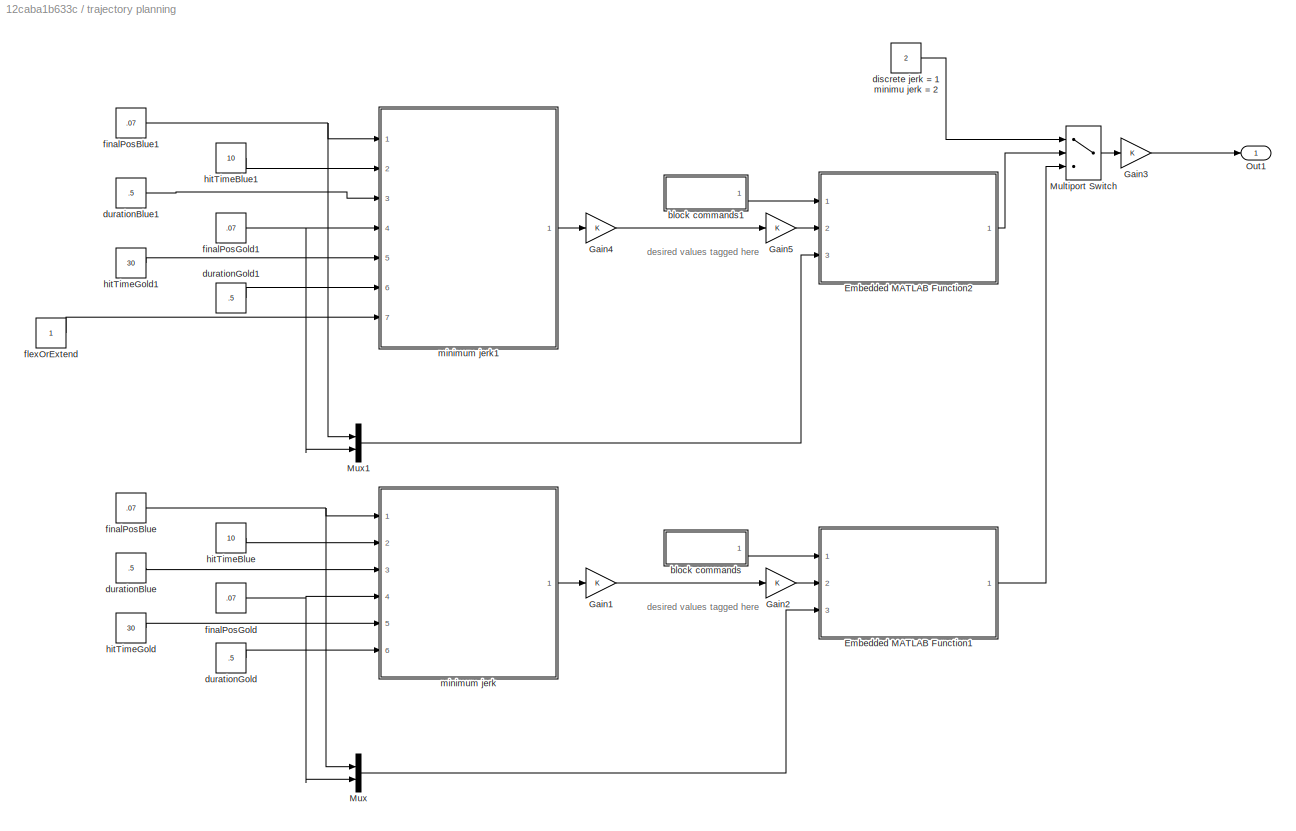
BLOCK [SubSystem] trajectory planning
  FunctionWithSeparateData = off
  MaskHideContents = off
  MinAlgLoopOccurrences = off
  Opaque = off
  Ports = [0, 1]
  PropExecContextOutsideSubsystem = off
  RTWSystemCode = Auto
  RequestExecContextInheritance = off
BLOCK [SubSystem] trajectory planning/Embedded MATLAB Function1
  ErrorFcn = Stateflow.Translate.translate
  FunctionWithSeparateData = off
  MaskHideContents = off
  MinAlgLoopOccurrences = off
  Opaque = off
  PermitHierarchicalResolution = ExplicitOnly
  Ports = [3, 1]
  PropExecContextOutsideSubsystem = off
  RTWSystemCode = Auto
  RequestExecContextInheritance = off
  SFBlockType = MATLAB Function
  TreatAsAtomicUnit = on
BLOCK [Demux] trajectory planning/Embedded MATLAB Function1/ Demux 
  Outputs = 1
  Ports = [1, 1]
BLOCK [S-Function] trajectory planning/Embedded MATLAB Function1/ SFunction 
  EnableBusSupport = on
  FunctionName = sf_sfun
  PortCounts = [3 2]
  Ports = [3, 2]
  Tag = Stateflow S-Function guitar3 16
BLOCK [Terminator] trajectory planning/Embedded MATLAB Function1/ Terminator 
BLOCK [Inport] trajectory planning/Embedded MATLAB Function1/blockCommand
  IconDisplay = Port number
BLOCK [Inport] trajectory planning/Embedded MATLAB Function1/finalPos
  IconDisplay = Port number
  Port = 3
BLOCK [Inport] trajectory planning/Embedded MATLAB Function1/traj
  IconDisplay = Port number
  Port = 2
BLOCK [Outport] trajectory planning/Embedded MATLAB Function1/trajB
  IconDisplay = Port number
BLOCK [SubSystem] trajectory planning/Embedded MATLAB Function2
  ErrorFcn = Stateflow.Translate.translate
  FunctionWithSeparateData = off
  MaskHideContents = off
  MinAlgLoopOccurrences = off
  Opaque = off
  PermitHierarchicalResolution = ExplicitOnly
  Ports = [3, 1]
  PropExecContextOutsideSubsystem = off
  RTWSystemCode = Auto
  RequestExecContextInheritance = off
  SFBlockType = MATLAB Function
  TreatAsAtomicUnit = on
BLOCK [Demux] trajectory planning/Embedded MATLAB Function2/ Demux 
  Outputs = 1
  Ports = [1, 1]
BLOCK [S-Function] trajectory planning/Embedded MATLAB Function2/ SFunction 
  EnableBusSupport = on
  FunctionName = sf_sfun
  PortCounts = [3 2]
  Ports = [3, 2]
  Tag = Stateflow S-Function guitar3 19
BLOCK [Terminator] trajectory planning/Embedded MATLAB Function2/ Terminator 
BLOCK [Inport] trajectory planning/Embedded MATLAB Function2/blockCommand
  IconDisplay = Port number
BLOCK [Inport] trajectory planning/Embedded MATLAB Function2/finalPos
  IconDisplay = Port number
  Port = 3
BLOCK [Inport] trajectory planning/Embedded MATLAB Function2/traj
  IconDisplay = Port number
  Port = 2
BLOCK [Outport] trajectory planning/Embedded MATLAB Function2/trajB
  IconDisplay = Port number
BLOCK [Gain] trajectory planning/Gain1
  OutDataTypeStr = Inherit: Inherit via internal rule
  ParamDataTypeStr = Inherit: Inherit via internal rule
  SaturateOnIntegerOverflow = off
BLOCK [Gain] trajectory planning/Gain2
  OutDataTypeStr = Inherit: Inherit via internal rule
  ParamDataTypeStr = Inherit: Inherit via internal rule
  SaturateOnIntegerOverflow = off
BLOCK [Gain] trajectory planning/Gain3
  OutDataTypeStr = Inherit: Inherit via internal rule
  ParamDataTypeStr = Inherit: Inherit via internal rule
  SaturateOnIntegerOverflow = off
BLOCK [Gain] trajectory planning/Gain4
  OutDataTypeStr = Inherit: Inherit via internal rule
  ParamDataTypeStr = Inherit: Inherit via internal rule
  SaturateOnIntegerOverflow = off
BLOCK [Gain] trajectory planning/Gain5
  OutDataTypeStr = Inherit: Inherit via internal rule
  ParamDataTypeStr = Inherit: Inherit via internal rule
  SaturateOnIntegerOverflow = off
BLOCK [MultiPortSwitch] trajectory planning/Multiport Switch
  InputSameDT = off
  Inputs = 2
  Ports = [3, 1]
  SaturateOnIntegerOverflow = off
BLOCK [Mux] trajectory planning/Mux
  DisplayOption = bar
  Inputs = 2
  Ports = [2, 1]
BLOCK [Mux] trajectory planning/Mux1
  DisplayOption = bar
  Inputs = 2
  Ports = [2, 1]
BLOCK [Outport] trajectory planning/Out1
  IconDisplay = Port number
BLOCK [SubSystem] trajectory planning/block commands
  FunctionWithSeparateData = off
  MaskHideContents = off
  MinAlgLoopOccurrences = off
  Opaque = off
  Ports = [0, 1]
  PropExecContextOutsideSubsystem = off
  RTWSystemCode = Auto
  RequestExecContextInheritance = off
BLOCK [Mux] trajectory planning/block commands/Mux1
  DisplayOption = bar
  Inputs = 3
  Ports = [3, 1]
BLOCK [Constant] trajectory planning/block commands/block command blue
  Description = xPCTag(1) = blockComBlue;
  Value = 0
BLOCK [Constant] trajectory planning/block commands/block command gold
  Description = xPCTag(1) = blockComGold;
  Value = 0
BLOCK [Outport] trajectory planning/block commands/block commands
  IconDisplay = Port number
BLOCK [Constant] trajectory planning/block commands/block fraction
  Description = xPCTag(1) = blockThresh;
  Value = .075
BLOCK [SubSystem] trajectory planning/block commands1
  FunctionWithSeparateData = off
  MaskHideContents = off
  MinAlgLoopOccurrences = off
  Opaque = off
  Ports = [0, 1]
  PropExecContextOutsideSubsystem = off
  RTWSystemCode = Auto
  RequestExecContextInheritance = off
BLOCK [Mux] trajectory planning/block commands1/Mux1
  DisplayOption = bar
  Inputs = 3
  Ports = [3, 1]
BLOCK [Constant] trajectory planning/block commands1/block command blue
  Description = xPCTag(1) = blockComBlue;
  Value = 0
BLOCK [Constant] trajectory planning/block commands1/block command gold
  Description = xPCTag(1) = blockComGold;
  Value = 0
BLOCK [Outport] trajectory planning/block commands1/block commands
  IconDisplay = Port number
BLOCK [Constant] trajectory planning/block commands1/block fraction
  Description = xPCTag(1) = blockThresh;
  Value = .075
BLOCK [Constant] trajectory planning/discrete jerk = 1 minimu jerk = 2
  Value = 2
BLOCK [Constant] trajectory planning/durationBlue
  Description = xPCTag(1) = durationBlue;
  Value = .5
BLOCK [Constant] trajectory planning/durationBlue1
  Description = xPCTag(1) = durationBlue;
  Value = .5
BLOCK [Constant] trajectory planning/durationGold
  Description = xPCTag(1) = durationGold;
  Value = .5
BLOCK [Constant] trajectory planning/durationGold1
  Description = xPCTag(1) = durationGold;
  Value = .5
BLOCK [Constant] trajectory planning/finalPosBlue
  Description = xPCTag(1) = finalPosBlue;
  Value = .07
BLOCK [Constant] trajectory planning/finalPosBlue1
  Description = xPCTag(1) = finalPosBlue;
  Value = .07
BLOCK [Constant] trajectory planning/finalPosGold
  Description = xPCTag(1) = finalPosGold;
  Value = .07
BLOCK [Constant] trajectory planning/finalPosGold1
  Description = xPCTag(1) = finalPosGold;
  Value = .07
BLOCK [Constant] trajectory planning/flexOrExtend
  Description = xPCTag(1) = flexOrExtend;
BLOCK [Constant] trajectory planning/hitTimeBlue
  Description = xPCTag(1) = hitTimeBlue;
  Value = 10
BLOCK [Constant] trajectory planning/hitTimeBlue1
  Description = xPCTag(1) = hitTimeBlue;
  Value = 10
BLOCK [Constant] trajectory planning/hitTimeGold
  Description = xPCTag(1) = hitTimeGold;
  Value = 30
BLOCK [Constant] trajectory planning/hitTimeGold1
  Description = xPCTag(1) = hitTimeGold;
  Value = 30
BLOCK [SubSystem] trajectory planning/minimum jerk
  FunctionWithSeparateData = off
  MaskHideContents = off
  MinAlgLoopOccurrences = off
  Opaque = off
  Ports = [6, 1]
  PropExecContextOutsideSubsystem = off
  RTWSystemCode = Auto
  RequestExecContextInheritance = off
BLOCK [Clock] trajectory planning/minimum jerk/Clock
BLOCK [Demux] trajectory planning/minimum jerk/Demux
  DisplayOption = bar
  Outputs = 3
  Ports = [1, 3]
BLOCK [Demux] trajectory planning/minimum jerk/Demux1
  DisplayOption = bar
  Outputs = 3
  Ports = [1, 3]
BLOCK [Gain] trajectory planning/minimum jerk/Gain
  OutDataTypeStr = Inherit: Inherit via internal rule
  ParamDataTypeStr = Inherit: Inherit via internal rule
  SaturateOnIntegerOverflow = off
BLOCK [SubSystem] trajectory planning/minimum jerk/MATLAB Function
  ErrorFcn = Stateflow.Translate.translate
  FunctionWithSeparateData = off
  MaskHideContents = off
  MinAlgLoopOccurrences = off
  Opaque = off
  PermitHierarchicalResolution = ExplicitOnly
  Ports = [4, 1]
  PropExecContextOutsideSubsystem = off
  RTWSystemCode = Auto
  RequestExecContextInheritance = off
  SFBlockType = MATLAB Function
  TreatAsAtomicUnit = on
BLOCK [Demux] trajectory planning/minimum jerk/MATLAB Function/ Demux 
  Outputs = 1
  Ports = [1, 1]
BLOCK [S-Function] trajectory planning/minimum jerk/MATLAB Function/ SFunction 
  EnableBusSupport = on
  FunctionName = sf_sfun
  PortCounts = [4 2]
  Ports = [4, 2]
  Tag = Stateflow S-Function guitar3 3
BLOCK [Terminator] trajectory planning/minimum jerk/MATLAB Function/ Terminator 
BLOCK [Inport] trajectory planning/minimum jerk/MATLAB Function/Pd
  IconDisplay = Port number
  Port = 2
BLOCK [Outport] trajectory planning/minimum jerk/MATLAB Function/des
  IconDisplay = Port number
BLOCK [Inport] trajectory planning/minimum jerk/MATLAB Function/t
  IconDisplay = Port number
  Port = 3
BLOCK [Inport] trajectory planning/minimum jerk/MATLAB Function/td
  IconDisplay = Port number
  Port = 4
BLOCK [Inport] trajectory planning/minimum jerk/MATLAB Function/th
  IconDisplay = Port number
BLOCK [SubSystem] trajectory planning/minimum jerk/MATLAB Function1
  ErrorFcn = Stateflow.Translate.translate
  FunctionWithSeparateData = off
  MaskHideContents = off
  MinAlgLoopOccurrences = off
  Opaque = off
  PermitHierarchicalResolution = ExplicitOnly
  Ports = [4, 1]
  PropExecContextOutsideSubsystem = off
  RTWSystemCode = Auto
  RequestExecContextInheritance = off
  SFBlockType = MATLAB Function
  TreatAsAtomicUnit = on
BLOCK [Demux] trajectory planning/minimum jerk/MATLAB Function1/ Demux 
  Outputs = 1
  Ports = [1, 1]
BLOCK [S-Function] trajectory planning/minimum jerk/MATLAB Function1/ SFunction 
  EnableBusSupport = on
  FunctionName = sf_sfun
  PortCounts = [4 2]
  Ports = [4, 2]
  Tag = Stateflow S-Function guitar3 6
BLOCK [Terminator] trajectory planning/minimum jerk/MATLAB Function1/ Terminator 
BLOCK [Inport] trajectory planning/minimum jerk/MATLAB Function1/Pd
  IconDisplay = Port number
  Port = 2
BLOCK [Outport] trajectory planning/minimum jerk/MATLAB Function1/des
  IconDisplay = Port number
BLOCK [Inport] trajectory planning/minimum jerk/MATLAB Function1/t
  IconDisplay = Port number
  Port = 3
BLOCK [Inport] trajectory planning/minimum jerk/MATLAB Function1/td
  IconDisplay = Port number
  Port = 4
BLOCK [Inport] trajectory planning/minimum jerk/MATLAB Function1/th
  IconDisplay = Port number
BLOCK [Mux] trajectory planning/minimum jerk/Mux
  DisplayOption = bar
  Inputs = 2
  Ports = [2, 1]
BLOCK [Mux] trajectory planning/minimum jerk/Mux1
  DisplayOption = bar
  Inputs = 3
  Ports = [3, 1]
BLOCK [Mux] trajectory planning/minimum jerk/Mux2
  DisplayOption = bar
  Inputs = 3
  Ports = [3, 1]
BLOCK [Outport] trajectory planning/minimum jerk/Out1
  IconDisplay = Port number
BLOCK [Saturate] trajectory planning/minimum jerk/Saturation1
  InputPortMap = u0
  LowerLimit = -10
  Ports = [1, 1]
  UpperLimit = .17
BLOCK [Saturate] trajectory planning/minimum jerk/Saturation2
  InputPortMap = u0
  LowerLimit = -10
  Ports = [1, 1]
  UpperLimit = .17
BLOCK [Sum] trajectory planning/minimum jerk/Sum1
  IconShape = round
  InputSameDT = off
  Inputs = |++
  OutDataTypeStr = Inherit: Inherit via internal rule
  Ports = [2, 1]
  SaturateOnIntegerOverflow = off
BLOCK [Sum] trajectory planning/minimum jerk/Sum2
  IconShape = round
  InputSameDT = off
  Inputs = |++
  OutDataTypeStr = Inherit: Inherit via internal rule
  Ports = [2, 1]
  SaturateOnIntegerOverflow = off
BLOCK [Constant] trajectory planning/minimum jerk/added offset 2
  Description = xPCTag(1)=blockoffset2;
  Value = 0.0
BLOCK [Constant] trajectory planning/minimum jerk/added offset1
  Description = xPCTag(1)=blockoffset1;
  Value = 0
BLOCK [Inport] trajectory planning/minimum jerk/duration1
  IconDisplay = Port number
  Port = 3
BLOCK [Inport] trajectory planning/minimum jerk/duration2
  IconDisplay = Port number
  Port = 6
BLOCK [Inport] trajectory planning/minimum jerk/final position1
  IconDisplay = Port number
BLOCK [Inport] trajectory planning/minimum jerk/final position2
  IconDisplay = Port number
  Port = 4
BLOCK [Inport] trajectory planning/minimum jerk/hit time1
  IconDisplay = Port number
  Port = 2
BLOCK [Inport] trajectory planning/minimum jerk/hit time2
  IconDisplay = Port number
  Port = 5
BLOCK [Gain] trajectory planning/minimum jerk/tag des pos1
  OutDataTypeStr = Inherit: Inherit via internal rule
  ParamDataTypeStr = Inherit: Inherit via internal rule
  SaturateOnIntegerOverflow = off
BLOCK [Gain] trajectory planning/minimum jerk/tag des pos2
  OutDataTypeStr = Inherit: Inherit via internal rule
  ParamDataTypeStr = Inherit: Inherit via internal rule
  SaturateOnIntegerOverflow = off
BLOCK [SubSystem] trajectory planning/minimum jerk1
  FunctionWithSeparateData = off
  MaskHideContents = off
  MinAlgLoopOccurrences = off
  Opaque = off
  Ports = [7, 1]
  PropExecContextOutsideSubsystem = off
  RTWSystemCode = Auto
  RequestExecContextInheritance = off
BLOCK [Clock] trajectory planning/minimum jerk1/Clock
BLOCK [Demux] trajectory planning/minimum jerk1/Demux
  DisplayOption = bar
  Outputs = 3
  Ports = [1, 3]
BLOCK [Demux] trajectory planning/minimum jerk1/Demux1
  DisplayOption = bar
  Outputs = 3
  Ports = [1, 3]
BLOCK [Gain] trajectory planning/minimum jerk1/Gain
  OutDataTypeStr = Inherit: Inherit via internal rule
  ParamDataTypeStr = Inherit: Inherit via internal rule
  SaturateOnIntegerOverflow = off
BLOCK [SubSystem] trajectory planning/minimum jerk1/MATLAB Function
  ErrorFcn = Stateflow.Translate.translate
  FunctionWithSeparateData = off
  MaskHideContents = off
  MinAlgLoopOccurrences = off
  Opaque = off
  PermitHierarchicalResolution = ExplicitOnly
  Ports = [5, 1]
  PropExecContextOutsideSubsystem = off
  RTWSystemCode = Auto
  RequestExecContextInheritance = off
  SFBlockType = MATLAB Function
  TreatAsAtomicUnit = on
BLOCK [Demux] trajectory planning/minimum jerk1/MATLAB Function/ Demux 
  Outputs = 1
  Ports = [1, 1]
BLOCK [S-Function] trajectory planning/minimum jerk1/MATLAB Function/ SFunction 
  EnableBusSupport = on
  FunctionName = sf_sfun
  PortCounts = [5 2]
  Ports = [5, 2]
  Tag = Stateflow S-Function guitar3 20
BLOCK [Terminator] trajectory planning/minimum jerk1/MATLAB Function/ Terminator 
BLOCK [Inport] trajectory planning/minimum jerk1/MATLAB Function/Pd
  IconDisplay = Port number
  Port = 2
BLOCK [Outport] trajectory planning/minimum jerk1/MATLAB Function/des
  IconDisplay = Port number
BLOCK [Inport] trajectory planning/minimum jerk1/MATLAB Function/flex
  IconDisplay = Port number
  Port = 5
BLOCK [Inport] trajectory planning/minimum jerk1/MATLAB Function/t
  IconDisplay = Port number
  Port = 3
BLOCK [Inport] trajectory planning/minimum jerk1/MATLAB Function/td
  IconDisplay = Port number
  Port = 4
BLOCK [Inport] trajectory planning/minimum jerk1/MATLAB Function/th
  IconDisplay = Port number
BLOCK [SubSystem] trajectory planning/minimum jerk1/MATLAB Function1
  ErrorFcn = Stateflow.Translate.translate
  FunctionWithSeparateData = off
  MaskHideContents = off
  MinAlgLoopOccurrences = off
  Opaque = off
  PermitHierarchicalResolution = ExplicitOnly
  Ports = [5, 1]
  PropExecContextOutsideSubsystem = off
  RTWSystemCode = Auto
  RequestExecContextInheritance = off
  SFBlockType = MATLAB Function
  TreatAsAtomicUnit = on
BLOCK [Demux] trajectory planning/minimum jerk1/MATLAB Function1/ Demux 
  Outputs = 1
  Ports = [1, 1]
BLOCK [S-Function] trajectory planning/minimum jerk1/MATLAB Function1/ SFunction 
  EnableBusSupport = on
  FunctionName = sf_sfun
  PortCounts = [5 2]
  Ports = [5, 2]
  Tag = Stateflow S-Function guitar3 21
BLOCK [Terminator] trajectory planning/minimum jerk1/MATLAB Function1/ Terminator 
BLOCK [Inport] trajectory planning/minimum jerk1/MATLAB Function1/Pd
  IconDisplay = Port number
  Port = 2
BLOCK [Outport] trajectory planning/minimum jerk1/MATLAB Function1/des
  IconDisplay = Port number
BLOCK [Inport] trajectory planning/minimum jerk1/MATLAB Function1/flex
  IconDisplay = Port number
  Port = 5
BLOCK [Inport] trajectory planning/minimum jerk1/MATLAB Function1/t
  IconDisplay = Port number
  Port = 3
BLOCK [Inport] trajectory planning/minimum jerk1/MATLAB Function1/td
  IconDisplay = Port number
  Port = 4
BLOCK [Inport] trajectory planning/minimum jerk1/MATLAB Function1/th
  IconDisplay = Port number
BLOCK [Mux] trajectory planning/minimum jerk1/Mux
  DisplayOption = bar
  Inputs = 2
  Ports = [2, 1]
BLOCK [Mux] trajectory planning/minimum jerk1/Mux1
  DisplayOption = bar
  Inputs = 3
  Ports = [3, 1]
BLOCK [Mux] trajectory planning/minimum jerk1/Mux2
  DisplayOption = bar
  Inputs = 3
  Ports = [3, 1]
BLOCK [Outport] trajectory planning/minimum jerk1/Out1
  IconDisplay = Port number
BLOCK [Saturate] trajectory planning/minimum jerk1/Saturation1
  InputPortMap = u0
  LowerLimit = -10
  Ports = [1, 1]
  UpperLimit = .17
BLOCK [Saturate] trajectory planning/minimum jerk1/Saturation2
  InputPortMap = u0
  LowerLimit = -10
  Ports = [1, 1]
  UpperLimit = .17
BLOCK [Sum] trajectory planning/minimum jerk1/Sum1
  IconShape = round
  InputSameDT = off
  Inputs = |++
  OutDataTypeStr = Inherit: Inherit via internal rule
  Ports = [2, 1]
  SaturateOnIntegerOverflow = off
BLOCK [Sum] trajectory planning/minimum jerk1/Sum2
  IconShape = round
  InputSameDT = off
  Inputs = |++
  OutDataTypeStr = Inherit: Inherit via internal rule
  Ports = [2, 1]
  SaturateOnIntegerOverflow = off
BLOCK [Constant] trajectory planning/minimum jerk1/added offset 2
  Description = xPCTag(1)=blockoffset2;
  Value = 0.0
BLOCK [Constant] trajectory planning/minimum jerk1/added offset1
  Description = xPCTag(1)=blockoffset1;
  Value = 0
BLOCK [Inport] trajectory planning/minimum jerk1/duration1
  IconDisplay = Port number
  Port = 3
BLOCK [Inport] trajectory planning/minimum jerk1/duration2
  IconDisplay = Port number
  Port = 6
BLOCK [Inport] trajectory planning/minimum jerk1/final position1
  IconDisplay = Port number
BLOCK [Inport] trajectory planning/minimum jerk1/final position2
  IconDisplay = Port number
  Port = 4
BLOCK [Inport] trajectory planning/minimum jerk1/flexOrExtend
  IconDisplay = Port number
  OutMax = 2
  OutMin = 1
  Port = 7
BLOCK [Inport] trajectory planning/minimum jerk1/hit time1
  IconDisplay = Port number
  Port = 2
BLOCK [Inport] trajectory planning/minimum jerk1/hit time2
  IconDisplay = Port number
  Port = 5
BLOCK [Gain] trajectory planning/minimum jerk1/tag des pos1
  OutDataTypeStr = Inherit: Inherit via internal rule
  ParamDataTypeStr = Inherit: Inherit via internal rule
  SaturateOnIntegerOverflow = off
BLOCK [Gain] trajectory planning/minimum jerk1/tag des pos2
  OutDataTypeStr = Inherit: Inherit via internal rule
  ParamDataTypeStr = Inherit: Inherit via internal rule
  SaturateOnIntegerOverflow = off
ANNOTATION Controller Parameters: -.001 working value
ANNOTATION Controller Parameters: -10
ANNOTATION Controller Parameters: -5
ANNOTATION Controller Parameters: -70
ANNOTATION Controller Parameters: .1
ANNOTATION Kalman Filter: positions and velocities tagged here!
ANNOTATION trajectory planning: desired values tagged here
ANNOTATION trajectory planning/minimum jerk: desired positions also tagged here as a backup (in caase I skrewed up the other)
ANNOTATION trajectory planning/minimum jerk1: desired positions also tagged here as a backup (in caase I skrewed up the other)
LINE Constant:1 -> Controller:1
LINE Controller Parameters/Adaptation Rate:1 -> Controller Parameters/Goto:1
LINE Controller Parameters/Lambda:1 -> Controller Parameters/Goto3:1
LINE Controller Parameters/PD d:1 -> Controller Parameters/Goto2:1
LINE Controller Parameters/PD p1:1 -> Controller Parameters/Goto5:1
LINE Controller Parameters/PD p:1 -> Controller Parameters/Goto1:1
LINE Controller Parameters/forgetting rate:1 -> Controller Parameters/Goto4:1
NET Controller/Chart:1 -> Controller/Multiport Switch1:1, Controller/Multiport Switch:1
LINE Controller/Chart:2 -> Controller/Goto:1
LINE Controller/Chart:3 -> Controller/Goto1:1
LINE Controller/Chart:4 -> Controller/Stop Simulation:1
LINE Controller/Demux:1 -> Controller/Chart:3
LINE Controller/Demux:2 -> Controller/Chart:4
LINE Controller/Demux:3 -> Controller/Chart:5
LINE Controller/Demux:4 -> Controller/Chart:6
LINE Controller/Multiport Switch1:1 -> Controller/Mux:2
LINE Controller/Multiport Switch:1 -> Controller/Mux:1
LINE Controller/Mux:1 -> Controller/Product:1
LINE Controller/PID/Clock:1 -> Controller/PID/Compare To Constant:1
NET Controller/PID/Compare To Constant:1 -> Controller/PID/Product1:2, Controller/PID/Product2:1
LINE Controller/PID/Demux4:1 -> Controller/PID/Sum1:1
LINE Controller/PID/Demux4:2 -> Controller/PID/Sum5:1
LINE Controller/PID/Demux4:3 -> Controller/PID/Terminator1:1
LINE Controller/PID/Demux4:4 -> Controller/PID/Sum3:2
LINE Controller/PID/Demux4:5 -> Controller/PID/Sum7:2
LINE Controller/PID/Demux4:6 -> Controller/PID/Terminator4:1
LINE Controller/PID/Demux5:1 -> Controller/PID/Sum2:1
LINE Controller/PID/Demux5:2 -> Controller/PID/Sum5:2
LINE Controller/PID/Demux5:3 -> Controller/PID/Sum4:2
LINE Controller/PID/Demux5:4 -> Controller/PID/Sum7:1
LINE Controller/PID/From1:1 -> Controller/PID/Sum4:3
LINE Controller/PID/From2:1 -> Controller/PID/gain file:1
LINE Controller/PID/From3:1 -> Controller/PID/gain file:2
LINE Controller/PID/From4:1 -> Controller/PID/gain file:3
LINE Controller/PID/From5:1 -> Controller/PID/gain file:4
LINE Controller/PID/From6:1 -> Controller/PID/Oscillator:1
LINE Controller/PID/From7:1 -> Controller/PID/Oscillator:2
LINE Controller/PID/From:1 -> Controller/PID/Sum2:2
LINE Controller/PID/Gain1:1 -> Controller/PID/Sum9:2
NET Controller/PID/Gain2:1 -> Controller/PID/Product6:2, Controller/PID/gain goto1:1
NET Controller/PID/Gain3:1 -> Controller/PID/Product4:2, Controller/PID/gain goto3:1
LINE Controller/PID/Gain4:1 -> Controller/PID/Sum1:2
LINE Controller/PID/Gain5:1 -> Controller/PID/Sum3:1
LINE Controller/PID/Gain6:1 -> Controller/PID/gain transition6:1
LINE Controller/PID/Gain:1 -> Controller/PID/Sum:1
LINE Controller/PID/Kd2 gain:1 -> Controller/PID/gain transition3:1
LINE Controller/PID/Kp2 gain:1 -> Controller/PID/gain transition2:1
LINE Controller/PID/Oscillator/Clock:1 -> Controller/PID/Oscillator/MATLAB Function:1
LINE Controller/PID/Oscillator/MATLAB Function:1 -> Controller/PID/Oscillator/force:1
LINE Controller/PID/Oscillator/f:1 -> Controller/PID/Oscillator/MATLAB Function:2
LINE Controller/PID/Oscillator/oscBool:1 -> Controller/PID/Oscillator/MATLAB Function:3
NET Controller/PID/Oscillator:1 -> Controller/PID/Sum9:1, Controller/PID/Sum:2
LINE Controller/PID/Product1:1 -> Controller/PID/Gain:1
LINE Controller/PID/Product2:1 -> Controller/PID/Gain1:1
LINE Controller/PID/Product3:1 -> Controller/PID/Sum8:1
LINE Controller/PID/Product4:1 -> Controller/PID/Sum8:2
LINE Controller/PID/Product5:1 -> Controller/PID/Sum6:1
LINE Controller/PID/Product6:1 -> Controller/PID/Sum6:2
LINE Controller/PID/Sum1:1 -> Controller/PID/Product5:2
LINE Controller/PID/Sum2:1 -> Controller/PID/Gain4:1
LINE Controller/PID/Sum3:1 -> Controller/PID/Product3:2
LINE Controller/PID/Sum4:1 -> Controller/PID/Gain5:1
LINE Controller/PID/Sum5:1 -> Controller/PID/Product6:1
LINE Controller/PID/Sum6:1 -> Controller/PID/Product1:1
LINE Controller/PID/Sum7:1 -> Controller/PID/Product4:1
LINE Controller/PID/Sum8:1 -> Controller/PID/Product2:2
LINE Controller/PID/Sum9:1 -> Controller/PID/force2:1
LINE Controller/PID/Sum:1 -> Controller/PID/force1:1
LINE Controller/PID/actual:1 -> Controller/PID/Demux5:1
LINE Controller/PID/add position offset:1 -> Controller/PID/gain transition4:1
LINE Controller/PID/desired:1 -> Controller/PID/Demux4:1
LINE Controller/PID/f:1 -> Controller/PID/gain transition5:1
LINE Controller/PID/gain file/Mux:1 -> Controller/PID/gain file/file readable outputs:1
LINE Controller/PID/gain file/file readable outputs:1 -> Controller/PID/gain file/Scope (xPC) :1
LINE Controller/PID/gain file/kd1:1 -> Controller/PID/gain file/Mux:2
LINE Controller/PID/gain file/kd2:1 -> Controller/PID/gain file/Mux:4
LINE Controller/PID/gain file/kp1:1 -> Controller/PID/gain file/Mux:1
LINE Controller/PID/gain file/kp2:1 -> Controller/PID/gain file/Mux:3
LINE Controller/PID/gain transition/From:1 -> Controller/PID/gain transition/gainramp:1
LINE Controller/PID/gain transition/Memory:1 -> Controller/PID/gain transition/gainramp:3
LINE Controller/PID/gain transition/gainD:1 -> Controller/PID/gain transition/gainramp:2
LINE Controller/PID/gain transition/gainramp:1 -> Controller/PID/gain transition/gainA:1
LINE Controller/PID/gain transition/gainramp:2 -> Controller/PID/gain transition/Memory:1
LINE Controller/PID/gain transition1/From:1 -> Controller/PID/gain transition1/gainramp:1
LINE Controller/PID/gain transition1/Memory:1 -> Controller/PID/gain transition1/gainramp:3
LINE Controller/PID/gain transition1/gainD:1 -> Controller/PID/gain transition1/gainramp:2
LINE Controller/PID/gain transition1/gainramp:1 -> Controller/PID/gain transition1/gainA:1
LINE Controller/PID/gain transition1/gainramp:2 -> Controller/PID/gain transition1/Memory:1
LINE Controller/PID/gain transition1:1 -> Controller/PID/Gain2:1
LINE Controller/PID/gain transition2/From:1 -> Controller/PID/gain transition2/gainramp:1
LINE Controller/PID/gain transition2/Memory:1 -> Controller/PID/gain transition2/gainramp:3
LINE Controller/PID/gain transition2/gainD:1 -> Controller/PID/gain transition2/gainramp:2
LINE Controller/PID/gain transition2/gainramp:1 -> Controller/PID/gain transition2/gainA:1
LINE Controller/PID/gain transition2/gainramp:2 -> Controller/PID/gain transition2/Memory:1
NET Controller/PID/gain transition2:1 -> Controller/PID/Product3:1, Controller/PID/gain goto2:1
LINE Controller/PID/gain transition3/From:1 -> Controller/PID/gain transition3/gainramp:1
LINE Controller/PID/gain transition3/Memory:1 -> Controller/PID/gain transition3/gainramp:3
LINE Controller/PID/gain transition3/gainD:1 -> Controller/PID/gain transition3/gainramp:2
LINE Controller/PID/gain transition3/gainramp:1 -> Controller/PID/gain transition3/gainA:1
LINE Controller/PID/gain transition3/gainramp:2 -> Controller/PID/gain transition3/Memory:1
LINE Controller/PID/gain transition3:1 -> Controller/PID/Gain3:1
LINE Controller/PID/gain transition4/Constant:1 -> Controller/PID/gain transition4/gainramp:1
LINE Controller/PID/gain transition4/Memory:1 -> Controller/PID/gain transition4/gainramp:3
LINE Controller/PID/gain transition4/gainD:1 -> Controller/PID/gain transition4/gainramp:2
LINE Controller/PID/gain transition4/gainramp:1 -> Controller/PID/gain transition4/gainA:1
LINE Controller/PID/gain transition4/gainramp:2 -> Controller/PID/gain transition4/Memory:1
NET Controller/PID/gain transition4:1 -> Controller/PID/Scope (xPC) 1:1, Controller/PID/Sum2:3, Controller/PID/Sum4:1
LINE Controller/PID/gain transition5/Constant:1 -> Controller/PID/gain transition5/gainramp:1
LINE Controller/PID/gain transition5/Memory:1 -> Controller/PID/gain transition5/gainramp:3
LINE Controller/PID/gain transition5/gainD:1 -> Controller/PID/gain transition5/gainramp:2
LINE Controller/PID/gain transition5/gainramp:1 -> Controller/PID/gain transition5/gainA:1
LINE Controller/PID/gain transition5/gainramp:2 -> Controller/PID/gain transition5/Memory:1
LINE Controller/PID/gain transition5:1 -> Controller/PID/gain goto4:1
LINE Controller/PID/gain transition6/Constant:1 -> Controller/PID/gain transition6/gainramp:1
LINE Controller/PID/gain transition6/Memory:1 -> Controller/PID/gain transition6/gainramp:3
LINE Controller/PID/gain transition6/gainD:1 -> Controller/PID/gain transition6/gainramp:2
LINE Controller/PID/gain transition6/gainramp:1 -> Controller/PID/gain transition6/gainA:1
LINE Controller/PID/gain transition6/gainramp:2 -> Controller/PID/gain transition6/Memory:1
LINE Controller/PID/gain transition6:1 -> Controller/PID/gain goto5:1
NET Controller/PID/gain transition:1 -> Controller/PID/Product5:1, Controller/PID/gain goto:1
LINE Controller/PID/kd1 gain:1 -> Controller/PID/gain transition1:1
LINE Controller/PID/kp1 gain:1 -> Controller/PID/gain transition:1
LINE Controller/PID/oscBool1:1 -> Controller/PID/Gain6:1
LINE Controller/PID/sigmoid duration in seconds1:1 -> Controller/PID/affects gain transition blocks1:1
LINE Controller/PID/sigmoid duration in seconds:1 -> Controller/PID/affects gain transition blocks:1
LINE Controller/PID:1 -> Controller/Multiport Switch:3
LINE Controller/PID:2 -> Controller/Multiport Switch1:3
LINE Controller/Product:1 -> Controller/force:1
LINE Controller/controller type: PID=1 AAN = 2 Generalized AAN =3:1 -> Controller/Chart:1
LINE Controller/desired_traj:1 -> Controller/PID:2
NET Controller/pos//vel:1 -> Controller/Demux:1, Controller/PID:1, Controller/stop:1
LINE Controller/shutdown:1 -> Controller/Chart:2
LINE Controller/start/Ramp:1 -> Controller/start/Saturation:1
LINE Controller/start/Saturation:1 -> Controller/start/Out1:1
NET Controller/start:1 -> Controller/Multiport Switch1:2, Controller/Multiport Switch:2
LINE Controller/stop forces:1 -> Controller/Product:2
LINE Controller/stop/Demux:1 -> Controller/stop/Terminator:1
LINE Controller/stop/Demux:2 -> Controller/stop/Gain:1
LINE Controller/stop/Demux:3 -> Controller/stop/Terminator1:1
LINE Controller/stop/Demux:4 -> Controller/stop/Gain1:1
LINE Controller/stop/Gain1:1 -> Controller/stop/force2:1
LINE Controller/stop/Gain:1 -> Controller/stop/force1:1
LINE Controller/stop/actual:1 -> Controller/stop/Demux:1
LINE Controller/stop:1 -> Controller/Multiport Switch:4
LINE Controller/stop:2 -> Controller/Multiport Switch1:4
LINE Controller:1 -> Robot:1
LINE Host file/Demux1:1 -> Host file/Terminator4:1
LINE Host file/Demux1:2 -> Host file/Terminator5:1
LINE Host file/Demux1:3 -> Host file/Mux:8
LINE Host file/Demux1:4 -> Host file/Mux:10
LINE Host file/Demux:1 -> Host file/Mux:5
LINE Host file/Demux:2 -> Host file/Terminator2:1
LINE Host file/Demux:3 -> Host file/Terminator:1
LINE Host file/Demux:4 -> Host file/Mux:6
LINE Host file/Demux:5 -> Host file/Terminator3:1
LINE Host file/Demux:6 -> Host file/Terminator1:1
LINE Host file/Embedded MATLAB Function1:1 -> Host file/Terminator6:1
LINE Host file/Embedded MATLAB Function2:1 -> Host file/Mux:9
LINE Host file/Embedded MATLAB Function3:1 -> Host file/Mux:7
LINE Host file/Embedded MATLAB Function4:1 -> Host file/Terminator7:1
LINE Host file/From2:1 -> Host file/Embedded MATLAB Function3:1
LINE Host file/From3:1 -> Host file/Embedded MATLAB Function1:1
LINE Host file/From4:1 -> Host file/Embedded MATLAB Function2:1
LINE Host file/From5:1 -> Host file/Embedded MATLAB Function4:1
LINE Host file/Mux:1 -> Host file/Scope (xPC) 1:1
LINE Host file/Subsystem/Demux1:1 -> Host file/Subsystem/Sum:2
LINE Host file/Subsystem/Demux1:2 -> Host file/Subsystem/velblue:1
LINE Host file/Subsystem/Demux1:3 -> Host file/Subsystem/Sum1:2
LINE Host file/Subsystem/Demux1:4 -> Host file/Subsystem/velgold:1
LINE Host file/Subsystem/Sum1:1 -> Host file/Subsystem/posgold:1
LINE Host file/Subsystem/Sum:1 -> Host file/Subsystem/posblue:1
LINE Host file/Subsystem/p offset 1:1 -> Host file/Subsystem/Sum:1
LINE Host file/Subsystem/p offset 2:1 -> Host file/Subsystem/Sum1:1
LINE Host file/Subsystem/pos_vel:1 -> Host file/Subsystem/Demux1:1
LINE Host file/Subsystem:1 -> Host file/Mux:1
LINE Host file/Subsystem:2 -> Host file/Mux:2
LINE Host file/Subsystem:3 -> Host file/Mux:3
LINE Host file/Subsystem:4 -> Host file/Mux:4
LINE Host file/actual traj:1 -> Host file/Subsystem:3
LINE Host file/desired traj:1 -> Host file/Demux:1
LINE Host file/pos1 offset:1 -> Host file/Subsystem:1
LINE Host file/pos2 offset:1 -> Host file/Subsystem:2
LINE Host file/raw pos_accel:1 -> Host file/Demux1:1
LINE Kalman Filter/Demux:1 -> Kalman Filter/kalman3:1
LINE Kalman Filter/Demux:2 -> Kalman Filter/kalman4:1
LINE Kalman Filter/Demux:3 -> Kalman Filter/kalman3:2
LINE Kalman Filter/Demux:4 -> Kalman Filter/kalman4:2
LINE Kalman Filter/Gain:1 -> Kalman Filter/Out1:1
LINE Kalman Filter/In1:1 -> Kalman Filter/Demux:1
LINE Kalman Filter/Mux:1 -> Kalman Filter/Gain:1
LINE Kalman Filter/kalman1/A:1 -> Kalman Filter/kalman1/Sum4:2
LINE Kalman Filter/kalman1/B1:1 -> Kalman Filter/kalman1/Sum2:1
LINE Kalman Filter/kalman1/B2:1 -> Kalman Filter/kalman1/Terminator1:1
LINE Kalman Filter/kalman1/B3:1 -> Kalman Filter/kalman1/Mux:2
LINE Kalman Filter/kalman1/B:1 -> Kalman Filter/kalman1/Sum3:1
LINE Kalman Filter/kalman1/C:1 -> Kalman Filter/kalman1/Sum2:2
LINE Kalman Filter/kalman1/Demux:1 -> Kalman Filter/kalman1/Terminator:1
LINE Kalman Filter/kalman1/Demux:2 -> Kalman Filter/kalman1/B2:1
LINE Kalman Filter/kalman1/Demux:3 -> Kalman Filter/kalman1/B3:1
NET Kalman Filter/kalman1/Integrator:1 -> Kalman Filter/kalman1/A:1, Kalman Filter/kalman1/C:1, Kalman Filter/kalman1/Demux:1, Kalman Filter/kalman1/Scope1:1
LINE Kalman Filter/kalman1/K:1 -> Kalman Filter/kalman1/Sum3:2
LINE Kalman Filter/kalman1/Mux:1 -> Kalman Filter/kalman1/position//est_vel:1
LINE Kalman Filter/kalman1/Sum2:1 -> Kalman Filter/kalman1/K:1
LINE Kalman Filter/kalman1/Sum3:1 -> Kalman Filter/kalman1/Sum4:1
LINE Kalman Filter/kalman1/Sum4:1 -> Kalman Filter/kalman1/Integrator:1
LINE Kalman Filter/kalman1/acc:1 -> Kalman Filter/kalman1/B:1
NET Kalman Filter/kalman1/position:1 -> Kalman Filter/kalman1/B1:1, Kalman Filter/kalman1/Mux:1
LINE Kalman Filter/kalman2/A:1 -> Kalman Filter/kalman2/Sum4:2
LINE Kalman Filter/kalman2/B1:1 -> Kalman Filter/kalman2/Sum2:1
LINE Kalman Filter/kalman2/B2:1 -> Kalman Filter/kalman2/Terminator1:1
LINE Kalman Filter/kalman2/B3:1 -> Kalman Filter/kalman2/Mux:2
LINE Kalman Filter/kalman2/B:1 -> Kalman Filter/kalman2/Sum3:1
LINE Kalman Filter/kalman2/C:1 -> Kalman Filter/kalman2/Sum2:2
LINE Kalman Filter/kalman2/Demux:1 -> Kalman Filter/kalman2/Terminator:1
LINE Kalman Filter/kalman2/Demux:2 -> Kalman Filter/kalman2/B2:1
LINE Kalman Filter/kalman2/Demux:3 -> Kalman Filter/kalman2/B3:1
NET Kalman Filter/kalman2/Integrator:1 -> Kalman Filter/kalman2/A:1, Kalman Filter/kalman2/C:1, Kalman Filter/kalman2/Demux:1, Kalman Filter/kalman2/Scope1:1
LINE Kalman Filter/kalman2/K:1 -> Kalman Filter/kalman2/Sum3:2
LINE Kalman Filter/kalman2/Mux:1 -> Kalman Filter/kalman2/position//est_vel:1
LINE Kalman Filter/kalman2/Sum2:1 -> Kalman Filter/kalman2/K:1
LINE Kalman Filter/kalman2/Sum3:1 -> Kalman Filter/kalman2/Sum4:1
LINE Kalman Filter/kalman2/Sum4:1 -> Kalman Filter/kalman2/Integrator:1
LINE Kalman Filter/kalman2/acc:1 -> Kalman Filter/kalman2/B:1
NET Kalman Filter/kalman2/position:1 -> Kalman Filter/kalman2/B1:1, Kalman Filter/kalman2/Mux:1
LINE Kalman Filter/kalman3/A:1 -> Kalman Filter/kalman3/Sum4:2
LINE Kalman Filter/kalman3/B1:1 -> Kalman Filter/kalman3/Sum2:1
LINE Kalman Filter/kalman3/B2:1 -> Kalman Filter/kalman3/Terminator1:1
LINE Kalman Filter/kalman3/B3:1 -> Kalman Filter/kalman3/Terminator2:1
LINE Kalman Filter/kalman3/B:1 -> Kalman Filter/kalman3/Sum3:1
LINE Kalman Filter/kalman3/C:1 -> Kalman Filter/kalman3/Sum2:2
LINE Kalman Filter/kalman3/Demux:1 -> Kalman Filter/kalman3/Terminator:1
LINE Kalman Filter/kalman3/Demux:2 -> Kalman Filter/kalman3/B2:1
LINE Kalman Filter/kalman3/Demux:3 -> Kalman Filter/kalman3/B3:1
LINE Kalman Filter/kalman3/Discrete Derivative:1 -> Kalman Filter/kalman3/Mux:2
NET Kalman Filter/kalman3/Integrator:1 -> Kalman Filter/kalman3/A:1, Kalman Filter/kalman3/C:1, Kalman Filter/kalman3/Demux:1
LINE Kalman Filter/kalman3/K:1 -> Kalman Filter/kalman3/Sum3:2
LINE Kalman Filter/kalman3/Mux:1 -> Kalman Filter/kalman3/position//est_vel:1
LINE Kalman Filter/kalman3/Sum2:1 -> Kalman Filter/kalman3/K:1
LINE Kalman Filter/kalman3/Sum3:1 -> Kalman Filter/kalman3/Sum4:1
LINE Kalman Filter/kalman3/Sum4:1 -> Kalman Filter/kalman3/Integrator:1
LINE Kalman Filter/kalman3/acc:1 -> Kalman Filter/kalman3/B:1
NET Kalman Filter/kalman3/position:1 -> Kalman Filter/kalman3/B1:1, Kalman Filter/kalman3/Discrete Derivative:1, Kalman Filter/kalman3/Mux:1
LINE Kalman Filter/kalman3:1 -> Kalman Filter/Mux:1
LINE Kalman Filter/kalman4/A:1 -> Kalman Filter/kalman4/Sum4:2
LINE Kalman Filter/kalman4/B1:1 -> Kalman Filter/kalman4/Sum2:1
LINE Kalman Filter/kalman4/B2:1 -> Kalman Filter/kalman4/Terminator1:1
LINE Kalman Filter/kalman4/B3:1 -> Kalman Filter/kalman4/Terminator2:1
LINE Kalman Filter/kalman4/B:1 -> Kalman Filter/kalman4/Sum3:1
LINE Kalman Filter/kalman4/C:1 -> Kalman Filter/kalman4/Sum2:2
LINE Kalman Filter/kalman4/Demux:1 -> Kalman Filter/kalman4/Terminator:1
LINE Kalman Filter/kalman4/Demux:2 -> Kalman Filter/kalman4/B2:1
LINE Kalman Filter/kalman4/Demux:3 -> Kalman Filter/kalman4/B3:1
LINE Kalman Filter/kalman4/Discrete Derivative:1 -> Kalman Filter/kalman4/Mux:2
NET Kalman Filter/kalman4/Integrator:1 -> Kalman Filter/kalman4/A:1, Kalman Filter/kalman4/C:1, Kalman Filter/kalman4/Demux:1
LINE Kalman Filter/kalman4/K:1 -> Kalman Filter/kalman4/Sum3:2
LINE Kalman Filter/kalman4/Mux:1 -> Kalman Filter/kalman4/position//est_vel:1
LINE Kalman Filter/kalman4/Sum2:1 -> Kalman Filter/kalman4/K:1
LINE Kalman Filter/kalman4/Sum3:1 -> Kalman Filter/kalman4/Sum4:1
LINE Kalman Filter/kalman4/Sum4:1 -> Kalman Filter/kalman4/Integrator:1
LINE Kalman Filter/kalman4/acc:1 -> Kalman Filter/kalman4/B:1
NET Kalman Filter/kalman4/position:1 -> Kalman Filter/kalman4/B1:1, Kalman Filter/kalman4/Discrete Derivative:1, Kalman Filter/kalman4/Mux:1
LINE Kalman Filter/kalman4:1 -> Kalman Filter/Mux:2
NET Kalman Filter:1 -> Controller:3, Host file:2
LINE Robot/Constant:1 -> Robot/Sum:2
LINE Robot/Demux:1 -> Robot/PCI-6221 DA:1
LINE Robot/Demux:2 -> Robot/PCI-6221 DA:2
LINE Robot/Gain1:1 -> Robot/Mux:2
LINE Robot/Gain2:1 -> Robot/Terminator:1
LINE Robot/Gain:1 -> Robot/Mux:1
LINE Robot/Mux:1 -> Robot/position//acc:1
LINE Robot/PCI 6221 ENC 1:1 -> Robot/Gain1:1
LINE Robot/PCI 6221 ENC :1 -> Robot/Gain:1
LINE Robot/PCI-6221 AD1:1 -> Robot/Mux:3
LINE Robot/PCI-6221 AD1:2 -> Robot/Sum:1
LINE Robot/PCI-6221 AD1:3 -> Robot/Mux:4
LINE Robot/Sum:1 -> Robot/Gain2:1
LINE Robot/force:1 -> Robot/Demux:1
NET Robot:1 -> Host file:1, Kalman Filter:1, Scope (xPC) :1
LINE trajectory planning/Embedded MATLAB Function1:1 -> trajectory planning/Multiport Switch:3
LINE trajectory planning/Embedded MATLAB Function2:1 -> trajectory planning/Multiport Switch:2
LINE trajectory planning/Gain1:1 -> trajectory planning/Gain2:1
LINE trajectory planning/Gain2:1 -> trajectory planning/Embedded MATLAB Function1:2
LINE trajectory planning/Gain3:1 -> trajectory planning/Out1:1
LINE trajectory planning/Gain4:1 -> trajectory planning/Gain5:1
LINE trajectory planning/Gain5:1 -> trajectory planning/Embedded MATLAB Function2:2
LINE trajectory planning/Multiport Switch:1 -> trajectory planning/Gain3:1
LINE trajectory planning/Mux1:1 -> trajectory planning/Embedded MATLAB Function2:3
LINE trajectory planning/Mux:1 -> trajectory planning/Embedded MATLAB Function1:3
LINE trajectory planning/block commands/Mux1:1 -> trajectory planning/block commands/block commands:1
LINE trajectory planning/block commands/block command blue:1 -> trajectory planning/block commands/Mux1:1
LINE trajectory planning/block commands/block command gold:1 -> trajectory planning/block commands/Mux1:2
LINE trajectory planning/block commands/block fraction:1 -> trajectory planning/block commands/Mux1:3
LINE trajectory planning/block commands1/Mux1:1 -> trajectory planning/block commands1/block commands:1
LINE trajectory planning/block commands1/block command blue:1 -> trajectory planning/block commands1/Mux1:1
LINE trajectory planning/block commands1/block command gold:1 -> trajectory planning/block commands1/Mux1:2
LINE trajectory planning/block commands1/block fraction:1 -> trajectory planning/block commands1/Mux1:3
LINE trajectory planning/block commands1:1 -> trajectory planning/Embedded MATLAB Function2:1
LINE trajectory planning/block commands:1 -> trajectory planning/Embedded MATLAB Function1:1
LINE trajectory planning/discrete jerk = 1 minimu jerk = 2:1 -> trajectory planning/Multiport Switch:1
LINE trajectory planning/durationBlue1:1 -> trajectory planning/minimum jerk1:3
LINE trajectory planning/durationBlue:1 -> trajectory planning/minimum jerk:3
LINE trajectory planning/durationGold1:1 -> trajectory planning/minimum jerk1:6
LINE trajectory planning/durationGold:1 -> trajectory planning/minimum jerk:6
NET trajectory planning/finalPosBlue1:1 -> trajectory planning/Mux1:1, trajectory planning/minimum jerk1:1
NET trajectory planning/finalPosBlue:1 -> trajectory planning/Mux:1, trajectory planning/minimum jerk:1
NET trajectory planning/finalPosGold1:1 -> trajectory planning/Mux1:2, trajectory planning/minimum jerk1:4
NET trajectory planning/finalPosGold:1 -> trajectory planning/Mux:2, trajectory planning/minimum jerk:4
LINE trajectory planning/flexOrExtend:1 -> trajectory planning/minimum jerk1:7
LINE trajectory planning/hitTimeBlue1:1 -> trajectory planning/minimum jerk1:2
LINE trajectory planning/hitTimeBlue:1 -> trajectory planning/minimum jerk:2
LINE trajectory planning/hitTimeGold1:1 -> trajectory planning/minimum jerk1:5
LINE trajectory planning/hitTimeGold:1 -> trajectory planning/minimum jerk:5
LINE trajectory planning/minimum jerk/Clock:1 -> trajectory planning/minimum jerk/Gain:1
LINE trajectory planning/minimum jerk/Demux1:1 -> trajectory planning/minimum jerk/Sum2:2
LINE trajectory planning/minimum jerk/Demux1:2 -> trajectory planning/minimum jerk/Mux2:2
LINE trajectory planning/minimum jerk/Demux1:3 -> trajectory planning/minimum jerk/Mux2:3
LINE trajectory planning/minimum jerk/Demux:1 -> trajectory planning/minimum jerk/Sum1:2
LINE trajectory planning/minimum jerk/Demux:2 -> trajectory planning/minimum jerk/Mux1:2
LINE trajectory planning/minimum jerk/Demux:3 -> trajectory planning/minimum jerk/Mux1:3
NET trajectory planning/minimum jerk/Gain:1 -> trajectory planning/minimum jerk/MATLAB Function1:3, trajectory planning/minimum jerk/MATLAB Function:3
LINE trajectory planning/minimum jerk/MATLAB Function1:1 -> trajectory planning/minimum jerk/Demux1:1
LINE trajectory planning/minimum jerk/MATLAB Function:1 -> trajectory planning/minimum jerk/Demux:1
LINE trajectory planning/minimum jerk/Mux1:1 -> trajectory planning/minimum jerk/Mux:1
LINE trajectory planning/minimum jerk/Mux2:1 -> trajectory planning/minimum jerk/Mux:2
LINE trajectory planning/minimum jerk/Mux:1 -> trajectory planning/minimum jerk/Out1:1
LINE trajectory planning/minimum jerk/Saturation1:1 -> trajectory planning/minimum jerk/MATLAB Function:2
LINE trajectory planning/minimum jerk/Saturation2:1 -> trajectory planning/minimum jerk/MATLAB Function1:2
LINE trajectory planning/minimum jerk/Sum1:1 -> trajectory planning/minimum jerk/tag des pos1:1
LINE trajectory planning/minimum jerk/Sum2:1 -> trajectory planning/minimum jerk/tag des pos2:1
LINE trajectory planning/minimum jerk/added offset 2:1 -> trajectory planning/minimum jerk/Sum2:1
LINE trajectory planning/minimum jerk/added offset1:1 -> trajectory planning/minimum jerk/Sum1:1
LINE trajectory planning/minimum jerk/duration1:1 -> trajectory planning/minimum jerk/MATLAB Function:4
LINE trajectory planning/minimum jerk/duration2:1 -> trajectory planning/minimum jerk/MATLAB Function1:4
LINE trajectory planning/minimum jerk/final position1:1 -> trajectory planning/minimum jerk/Saturation1:1
LINE trajectory planning/minimum jerk/final position2:1 -> trajectory planning/minimum jerk/Saturation2:1
LINE trajectory planning/minimum jerk/hit time1:1 -> trajectory planning/minimum jerk/MATLAB Function:1
LINE trajectory planning/minimum jerk/hit time2:1 -> trajectory planning/minimum jerk/MATLAB Function1:1
LINE trajectory planning/minimum jerk/tag des pos1:1 -> trajectory planning/minimum jerk/Mux1:1
LINE trajectory planning/minimum jerk/tag des pos2:1 -> trajectory planning/minimum jerk/Mux2:1
LINE trajectory planning/minimum jerk1/Clock:1 -> trajectory planning/minimum jerk1/Gain:1
LINE trajectory planning/minimum jerk1/Demux1:1 -> trajectory planning/minimum jerk1/Sum2:2
LINE trajectory planning/minimum jerk1/Demux1:2 -> trajectory planning/minimum jerk1/Mux2:2
LINE trajectory planning/minimum jerk1/Demux1:3 -> trajectory planning/minimum jerk1/Mux2:3
LINE trajectory planning/minimum jerk1/Demux:1 -> trajectory planning/minimum jerk1/Sum1:2
LINE trajectory planning/minimum jerk1/Demux:2 -> trajectory planning/minimum jerk1/Mux1:2
LINE trajectory planning/minimum jerk1/Demux:3 -> trajectory planning/minimum jerk1/Mux1:3
NET trajectory planning/minimum jerk1/Gain:1 -> trajectory planning/minimum jerk1/MATLAB Function1:3, trajectory planning/minimum jerk1/MATLAB Function:3
LINE trajectory planning/minimum jerk1/MATLAB Function1:1 -> trajectory planning/minimum jerk1/Demux1:1
LINE trajectory planning/minimum jerk1/MATLAB Function:1 -> trajectory planning/minimum jerk1/Demux:1
LINE trajectory planning/minimum jerk1/Mux1:1 -> trajectory planning/minimum jerk1/Mux:1
LINE trajectory planning/minimum jerk1/Mux2:1 -> trajectory planning/minimum jerk1/Mux:2
LINE trajectory planning/minimum jerk1/Mux:1 -> trajectory planning/minimum jerk1/Out1:1
LINE trajectory planning/minimum jerk1/Saturation1:1 -> trajectory planning/minimum jerk1/MATLAB Function:2
LINE trajectory planning/minimum jerk1/Saturation2:1 -> trajectory planning/minimum jerk1/MATLAB Function1:2
LINE trajectory planning/minimum jerk1/Sum1:1 -> trajectory planning/minimum jerk1/tag des pos1:1
LINE trajectory planning/minimum jerk1/Sum2:1 -> trajectory planning/minimum jerk1/tag des pos2:1
LINE trajectory planning/minimum jerk1/added offset 2:1 -> trajectory planning/minimum jerk1/Sum2:1
LINE trajectory planning/minimum jerk1/added offset1:1 -> trajectory planning/minimum jerk1/Sum1:1
LINE trajectory planning/minimum jerk1/duration1:1 -> trajectory planning/minimum jerk1/MATLAB Function:4
LINE trajectory planning/minimum jerk1/duration2:1 -> trajectory planning/minimum jerk1/MATLAB Function1:4
LINE trajectory planning/minimum jerk1/final position1:1 -> trajectory planning/minimum jerk1/Saturation1:1
LINE trajectory planning/minimum jerk1/final position2:1 -> trajectory planning/minimum jerk1/Saturation2:1
NET trajectory planning/minimum jerk1/flexOrExtend:1 -> trajectory planning/minimum jerk1/MATLAB Function1:5, trajectory planning/minimum jerk1/MATLAB Function:5
LINE trajectory planning/minimum jerk1/hit time1:1 -> trajectory planning/minimum jerk1/MATLAB Function:1
LINE trajectory planning/minimum jerk1/hit time2:1 -> trajectory planning/minimum jerk1/MATLAB Function1:1
LINE trajectory planning/minimum jerk1/tag des pos1:1 -> trajectory planning/minimum jerk1/Mux1:1
LINE trajectory planning/minimum jerk1/tag des pos2:1 -> trajectory planning/minimum jerk1/Mux2:1
LINE trajectory planning/minimum jerk1:1 -> trajectory planning/Gain4:1
LINE trajectory planning/minimum jerk:1 -> trajectory planning/Gain1:1
NET trajectory planning:1 -> Controller:2, Host file:3
note: NET lines group one-source signal fan-out (src -> all destinations, sorted); 1:1 wires keep LINE
